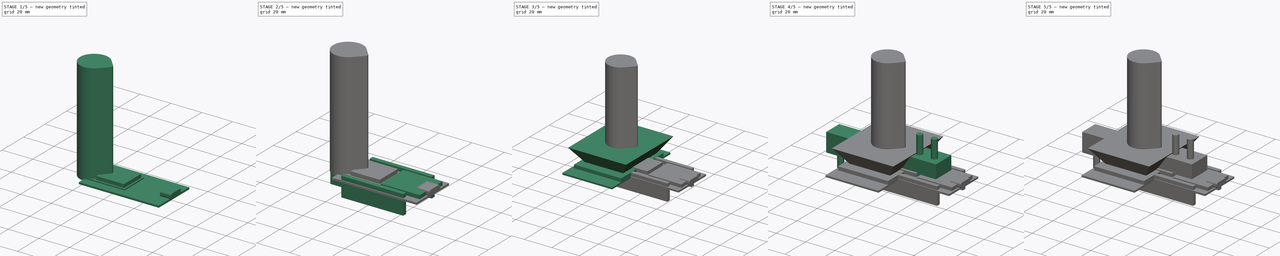
[diagram: build sequence overview — one tinted view per stage of 5, left to right]
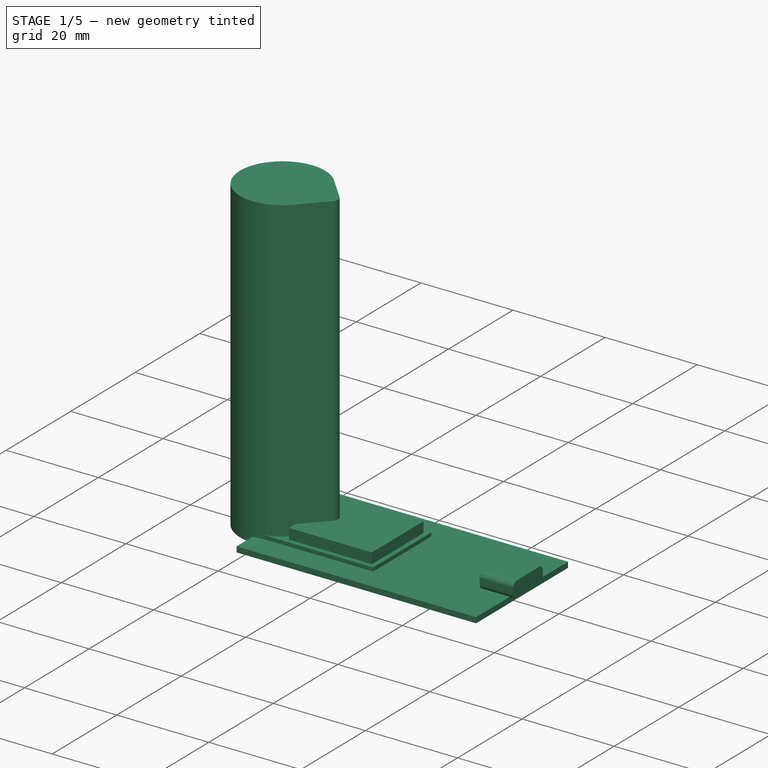
[diagram: stage 1 of 5 — iso view after this stage's code; geometry added in this stage tinted green]
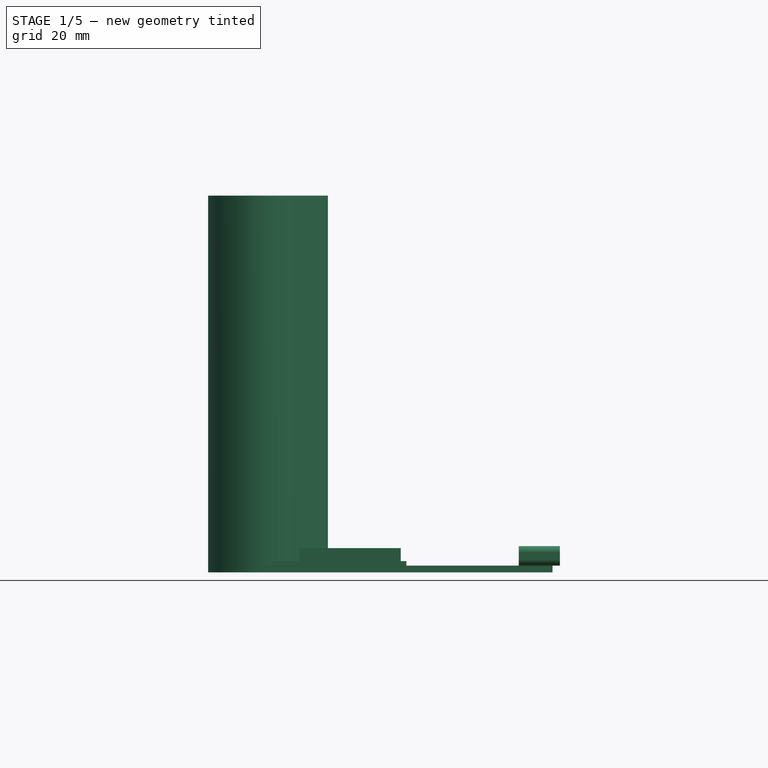
[diagram: stage 1 of 5 — front view after this stage's code; geometry added in this stage tinted green]
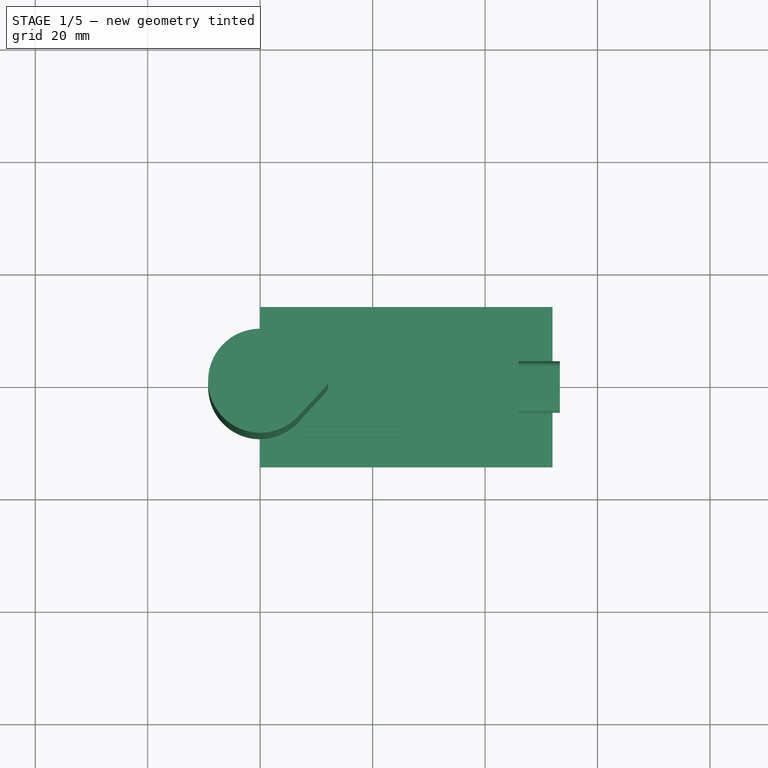
[diagram: stage 1 of 5 — top view after this stage's code; geometry added in this stage tinted green]
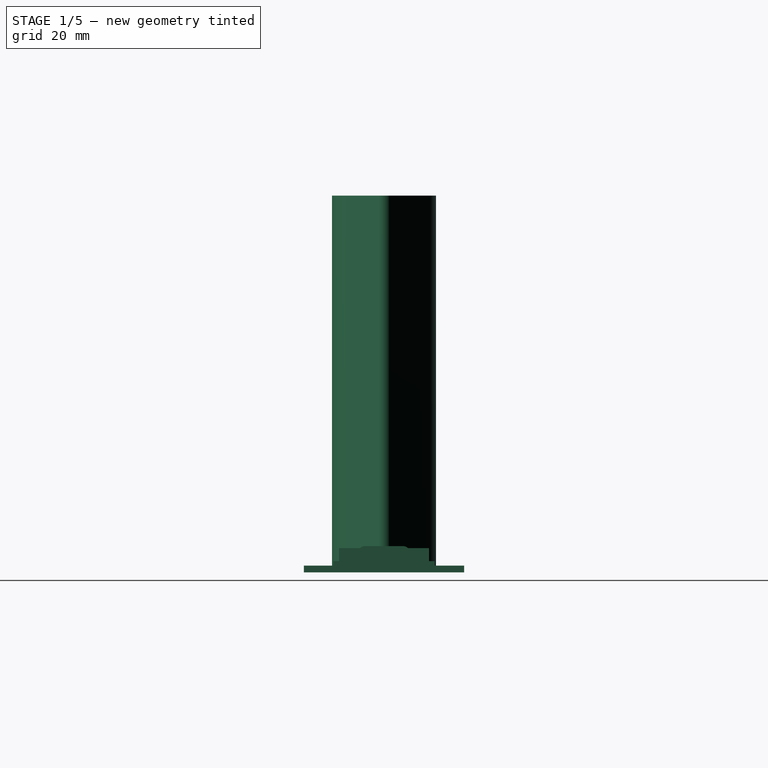
[diagram: stage 1 of 5 — right view after this stage's code; geometry added in this stage tinted green]
FCSTD DOCUMENT  (FreeCAD 0.22R38340 (Git))
Label: parts_v3
License: All rights reserved
LicenseURL: https://en.wikipedia.org/wiki/All_rights_reserved
objects: PartDesign::Pad×24, Sketcher::SketchObject×20, Image::ImagePlane×7, PartDesign::Body×7, PartDesign::SubShapeBinder×2, PartDesign::Pocket×1
note: 124 computed .brp shape members not serialized (recipe doc carries the construction recipe); baked Part::Feature solids carry a one-line shape summary decoded from their .brp

FEATURE [PartDesign::Body] Body007  label="Encoder"
  AllowCompound = false
  Group = -> [Sketch012,Pad009,Sketch013,Pad010,Sketch014,Pad011,Sketch015,Pad012]
  Origin = -> Origin007
  Tip = -> Pad012
FEATURE [Sketcher::SketchObject] Sketch016
  ArcFitTolerance = 1e-06
  AttachmentSupport = -> [XY_Plane008]
  FullyConstrained = false
  MakeInternals = false
  MapMode = 5
  sketch-geometry (5):
    g0: LineSegment StartX=0 StartY=14.25 StartZ=0 EndX=0 EndY=-14.25 EndZ=0
    g1: LineSegment StartX=0 StartY=-14.25 StartZ=0 EndX=52 EndY=-14.25 EndZ=0
    g2: LineSegment StartX=52 StartY=-14.25 StartZ=0 EndX=52 EndY=14.25 EndZ=0
    g3: LineSegment StartX=52 StartY=14.25 StartZ=0 EndX=0 EndY=14.25 EndZ=0
    g4: GeomPoint X=49.5 Y=0 Z=0
  constraints (12):
    c: Coincident(g0,g1)
    c: Coincident(g1,g2)
    c: Coincident(g2,g3)
    c: Coincident(g3,g0)
    c: Vertical(g2)
    c: Horizontal(g1)
    c: Horizontal(g3)
    c: DistanceX(g1,g1) = 52
    c: DistanceY(g2,g2) = 28.5
    c: PointOnObject(g4,g-1)
    c: PointOnObject(g0,g-2)
    c: Symmetric(g0,g0,g-1)
FEATURE [PartDesign::Pad] Pad001
  Direction = (0,0,1)
  Length = 1.2
  Length2 = 10
  Profile = -> Sketch016 [Edge4,Edge1,Edge2,Edge3]
  ReferenceAxis = -> Sketch016 [N_Axis]
  Refine = true
  Suppressed = false
  Type = 0
FEATURE [Sketcher::SketchObject] Sketch017
  ArcFitTolerance = 1e-06
  AttachmentSupport = -> [XY_Plane008]
  FullyConstrained = true
  MakeInternals = false
  MapMode = 5
  sketch-geometry (4):
    g0: LineSegment StartX=0 StartY=9 StartZ=0 EndX=0 EndY=-9 EndZ=0
    g1: LineSegment StartX=0 StartY=-9 StartZ=0 EndX=26 EndY=-9 EndZ=0
    g2: LineSegment StartX=26 StartY=-9 StartZ=0 EndX=26 EndY=9 EndZ=0
    g3: LineSegment StartX=26 StartY=9 StartZ=0 EndX=0 EndY=9 EndZ=0
  constraints (11):
    c: Coincident(g0,g1)
    c: Coincident(g1,g2)
    c: Coincident(g2,g3)
    c: Coincident(g3,g0)
    c: Parallel(g0,g2)
    c: Parallel(g1,g3)
    c: Perpendicular(g0,g1)
    c: PointOnObject(g0,g-2)
    c: DistanceX(g1,g1) = 26
    c: DistanceY(g2,g2) = 18
    c: Symmetric(g0,g0,g-1)
FEATURE [PartDesign::Pad] Pad003
  BaseFeature = -> Pad001
  Direction = (0,0,1)
  Length = 2
  Length2 = 10
  Profile = -> Sketch017
  ReferenceAxis = -> Sketch017 [N_Axis]
  Refine = true
  Suppressed = false
  Type = 0
FEATURE [Sketcher::SketchObject] Sketch018
  ArcFitTolerance = 1e-06
  AttachmentSupport = -> [XY_Plane008]
  FullyConstrained = true
  MakeInternals = false
  MapMode = 5
  sketch-geometry (5):
    g0: LineSegment StartX=7 StartY=-8 StartZ=0 EndX=25 EndY=-8 EndZ=0
    g1: LineSegment StartX=25 StartY=-8 StartZ=0 EndX=25 EndY=8 EndZ=0
    g2: LineSegment StartX=25 StartY=8 StartZ=0 EndX=7 EndY=8 EndZ=0
    g3: LineSegment StartX=7 StartY=8 StartZ=0 EndX=7 EndY=-8 EndZ=0
    g4: GeomPoint X=16 Y=3e-16 Z=0
  constraints (12):
    c: Coincident(g0,g1)
    c: Coincident(g1,g2)
    c: Coincident(g2,g3)
    c: Coincident(g3,g0)
    c: Horizontal(g0)
    c: Horizontal(g2)
    c: Vertical(g1)
    c: Symmetric(g2,g0,g4)
    c: Distance(g1,g3) = 18
    c: Distance(g0,g2) = 16
    c: Symmetric(g0,g2,g-1)
    c: DistanceX(g0) = 7
FEATURE [PartDesign::Pad] Pad029
  BaseFeature = -> Pad003
  Direction = (0,0,1)
  Length = 4.3
  Length2 = 10
  Profile = -> Sketch018
  ReferenceAxis = -> Sketch018 [N_Axis]
  Refine = true
  Suppressed = false
  Type = 0
FEATURE [Sketcher::SketchObject] Sketch004
  ArcFitTolerance = 1e-06
  AttachmentOffset = pos=(0,0,46) rot=(0,0,1;0rad)
  AttachmentSupport = -> [YZ_Plane008]
  FullyConstrained = true
  MakeInternals = false
  MapMode = 5
  Placement = pos=(46,0,0) rot=(0.57735,0.57735,0.57735;2.0944rad)
  sketch-geometry (9):
    g0: LineSegment StartX=-3.445 StartY=1.2 StartZ=0 EndX=3.445 EndY=1.2 EndZ=0
    g1: LineSegment StartX=4.57 StartY=2.325 StartZ=0 EndX=4.57 EndY=3.535 EndZ=0
    g2: LineSegment StartX=3.445 StartY=4.66 StartZ=0 EndX=-3.445 EndY=4.66 EndZ=0
    g3: LineSegment StartX=-4.57 StartY=3.535 StartZ=0 EndX=-4.57 EndY=2.325 EndZ=0
    g4: GeomPoint X=0 Y=2.93 Z=0
    g5: ArcOfCircle CenterX=3.445 CenterY=3.535 CenterZ=0 NormalX=0 NormalY=0 NormalZ=1 AngleXU=0 Radius=1.125 StartAngle=0 EndAngle=1.5708
    g6: ArcOfCircle CenterX=3.445 CenterY=2.325 CenterZ=0 NormalX=0 NormalY=0 NormalZ=1 AngleXU=0 Radius=1.125 StartAngle=4.71239 EndAngle=6.28319
    g7: ArcOfCircle CenterX=-3.445 CenterY=2.325 CenterZ=0 NormalX=0 NormalY=0 NormalZ=1 AngleXU=0 Radius=1.125 StartAngle=3.14159 EndAngle=4.71239
    g8: ArcOfCircle CenterX=-3.445 CenterY=3.535 CenterZ=0 NormalX=0 NormalY=0 NormalZ=1 AngleXU=0 Radius=1.125 StartAngle=1.5708 EndAngle=3.14159
  constraints (21):
    c: Horizontal(g0)
    c: Horizontal(g2)
    c: Vertical(g1)
    c: Vertical(g3)
    c: Symmetric(g2,g0,g4)
    c: Distance(g1,g3) = 9.14
    c: Distance(g0,g2) = 3.46
    c: PointOnObject(g4,g-2)
    c: Equal(g3,g1)
    c: Equal(g0,g2)
    c: Vertical(g0,g2)
    c: DistanceY(g1,g1) = 1.21
    c: Tangent(g5,g2) = -1.5708
    c: Tangent(g5,g1) = -1.5708
    c: Tangent(g6,g1) = -1.5708
    c: Tangent(g6,g0) = -1.5708
    c: Tangent(g7,g0) = -1.5708
    c: Tangent(g7,g3) = -1.5708
    c: Tangent(g8,g3) = -1.5708
    c: Tangent(g8,g2) = -1.5708
    c: DistanceY(g0) = 1.2
FEATURE [PartDesign::Pad] Pad030
  BaseFeature = -> Pad029
  Direction = (1,0,0)
  Length = 7.3
  Length2 = 10
  Profile = -> Sketch004
  ReferenceAxis = -> Sketch004 [N_Axis]
  Refine = true
  Suppressed = false
  Type = 0
FEATURE [PartDesign::Body] Body008  label="esp_new_mdl"
  AllowCompound = false
  Group = -> [Sketch016,Pad001,Sketch017,Pad003,Sketch018,Pad029,Sketch004,Pad030,Sketch019,Pad006,Sketch020,Pad031,Sketch021,Pad032]
  Origin = -> Origin008
  Placement = pos=(-1.28e-14,0,0) rot=(-0.57735,-0.57735,0.57735;0rad)
  Tip = -> Pad032
FEATURE [Image::ImagePlane] esp_new
  Placement = pos=(-0.5,2.5,0) rot=(0,0,1;1.5708rad)
  XSize = 91.3875
  YSize = 91.3875
FEATURE [Image::ImagePlane] encoder
  Placement = pos=(-7,-2,0) rot=(0,0,1;0rad)
  XSize = 84.6872
  YSize = 50.0838
FEATURE [PartDesign::Pad] Pad
  Direction = (0,0,1)
  Length = 67
  Length2 = 10
  Profile = -> Sketch005
  ReferenceAxis = -> Sketch005 [N_Axis]
  Refine = true
  Suppressed = false
  Type = 0
FEATURE [PartDesign::Body] Body004  label="akku"
  AllowCompound = false
  Group = -> [Sketch005,Pad]
  Origin = -> Origin004
  Tip = -> Pad
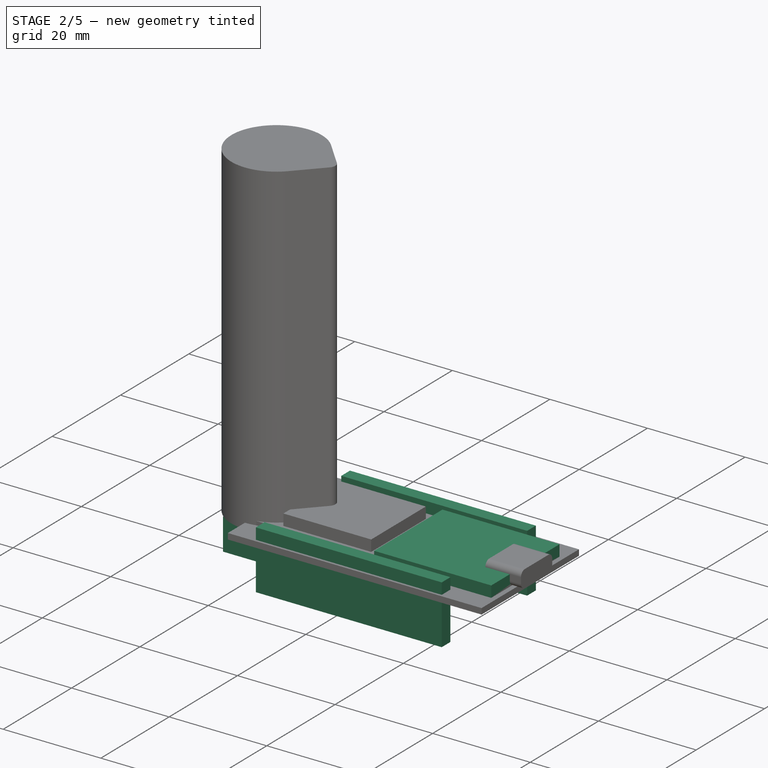
[diagram: stage 2 of 5 — iso view after this stage's code; geometry added in this stage tinted green]
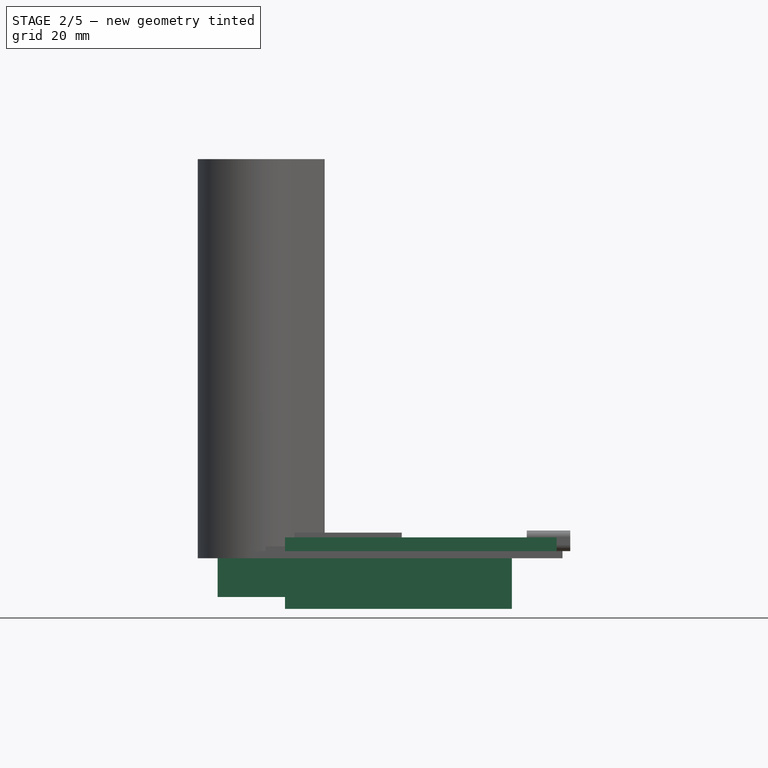
[diagram: stage 2 of 5 — front view after this stage's code; geometry added in this stage tinted green]
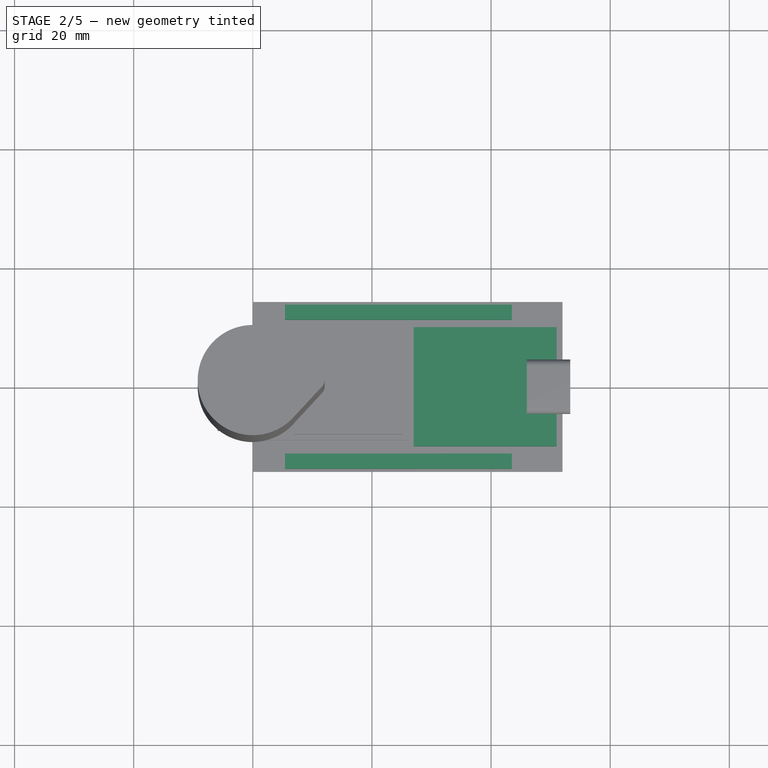
[diagram: stage 2 of 5 — top view after this stage's code; geometry added in this stage tinted green]
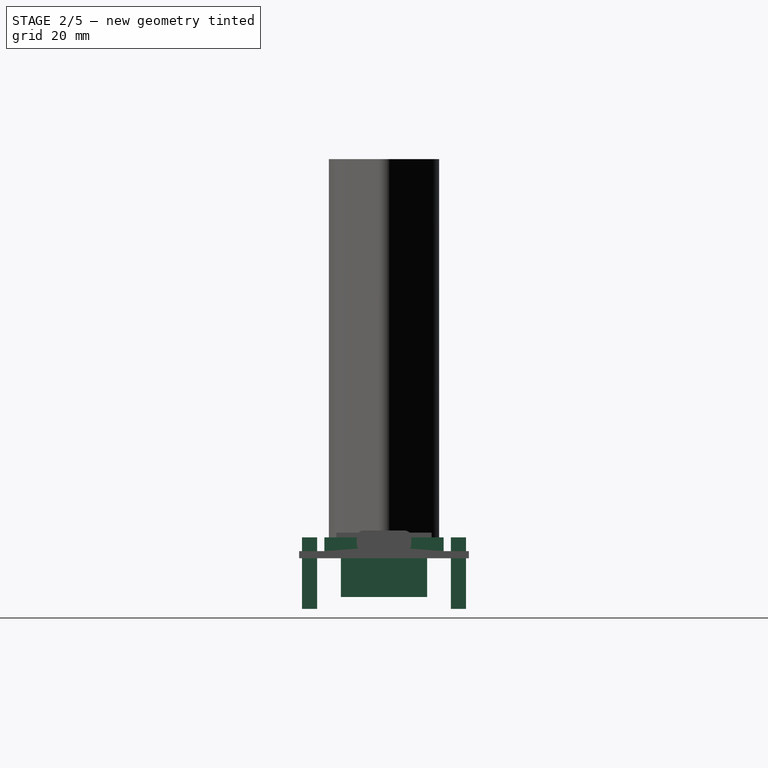
[diagram: stage 2 of 5 — right view after this stage's code; geometry added in this stage tinted green]
FEATURE [PartDesign::Body] Body001  label="display"
  AllowCompound = false
  Group = -> [Sketch001,Sketch011,Pad027,Pad004,Binder,Pad005,Pad028]
  Origin = -> Origin001
  Tip = -> Pad028
FEATURE [Sketcher::SketchObject] Sketch012
  ArcFitTolerance = 1e-06
  AttachmentSupport = -> [XY_Plane007]
  FullyConstrained = true
  MakeInternals = false
  MapMode = 5
  sketch-geometry (4):
    g0: LineSegment StartX=-5.9 StartY=7.25 StartZ=0 EndX=-5.9 EndY=-7.25 EndZ=0
    g1: LineSegment StartX=-5.9 StartY=-7.25 StartZ=0 EndX=5.9 EndY=-7.25 EndZ=0
    g2: LineSegment StartX=5.9 StartY=-7.25 StartZ=0 EndX=5.9 EndY=7.25 EndZ=0
    g3: LineSegment StartX=5.9 StartY=7.25 StartZ=0 EndX=-5.9 EndY=7.25 EndZ=0
  constraints (11):
    c: Coincident(g0,g1)
    c: Coincident(g1,g2)
    c: Coincident(g2,g3)
    c: Coincident(g3,g0)
    c: Vertical(g0)
    c: Vertical(g2)
    c: Horizontal(g1)
    c: Horizontal(g3)
    c: DistanceX(g3,g3) = 11.8
    c: Symmetric(g0,g2,g-1)
    c: DistanceY(g2,g2) = 14.5
FEATURE [PartDesign::Pad] Pad009
  Direction = (0,0,1)
  Length = 6.5
  Length2 = 10
  Profile = -> Sketch012
  ReferenceAxis = -> Sketch012 [N_Axis]
  Refine = true
  Reversed = true
  Suppressed = false
  Type = 0
FEATURE [Sketcher::SketchObject] Sketch013
  ArcFitTolerance = 1e-06
  AttachmentSupport = -> [XY_Plane007]
  FullyConstrained = true
  MakeInternals = false
  MapMode = 5
  sketch-geometry (1):
    g0: Circle CenterX=0 CenterY=0 CenterZ=0 NormalX=0 NormalY=0 NormalZ=1 AngleXU=0 Radius=3.5
  constraints (2):
    c: Diameter(g0) = 7
    c: Coincident(g0,g-1)
FEATURE [PartDesign::Pad] Pad010
  BaseFeature = -> Pad009
  Direction = (0,0,1)
  Length = 5
  Length2 = 10
  Profile = -> Sketch013
  ReferenceAxis = -> Sketch013 [N_Axis]
  Refine = true
  Suppressed = false
  Type = 0
FEATURE [Sketcher::SketchObject] Sketch019
  ArcFitTolerance = 1e-06
  AttachmentSupport = -> [XY_Plane008]
  FullyConstrained = true
  MakeInternals = false
  MapMode = 5
  sketch-geometry (5):
    g0: LineSegment StartX=27 StartY=-10 StartZ=0 EndX=51 EndY=-10 EndZ=0
    g1: LineSegment StartX=51 StartY=-10 StartZ=0 EndX=51 EndY=10 EndZ=0
    g2: LineSegment StartX=51 StartY=10 StartZ=0 EndX=27 EndY=10 EndZ=0
    g3: LineSegment StartX=27 StartY=10 StartZ=0 EndX=27 EndY=-10 EndZ=0
    g4: GeomPoint X=39 Y=-2e-16 Z=0
  constraints (13):
    c: Coincident(g0,g1)
    c: Coincident(g1,g2)
    c: Coincident(g2,g3)
    c: Coincident(g3,g0)
    c: Horizontal(g0)
    c: Horizontal(g2)
    c: Vertical(g1)
    c: Vertical(g3)
    c: Symmetric(g2,g0,g4)
    c: PointOnObject(g4,g-1)
    c: DistanceX(g0) = 27
    c: DistanceX(g0,g0) = 24
    c: DistanceY(g1,g1) = 20
FEATURE [PartDesign::Pad] Pad006
  BaseFeature = -> Pad030
  Direction = (0,0,1)
  Length = 3.5
  Length2 = 10
  Profile = -> Sketch019
  ReferenceAxis = -> Sketch019 [N_Axis]
  Refine = true
  Suppressed = false
  Type = 0
FEATURE [Sketcher::SketchObject] Sketch020
  ArcFitTolerance = 1e-06
  AttachmentSupport = -> [XY_Plane008]
  FullyConstrained = true
  MakeInternals = false
  MapMode = 5
  sketch-geometry (10):
    g0: LineSegment StartX=5.4 StartY=13.77 StartZ=0 EndX=5.4 EndY=11.23 EndZ=0
    g1: LineSegment StartX=5.4 StartY=11.23 StartZ=0 EndX=43.5 EndY=11.23 EndZ=0
    g2: LineSegment StartX=43.5 StartY=11.23 StartZ=0 EndX=43.5 EndY=13.77 EndZ=0
    g3: LineSegment StartX=43.5 StartY=13.77 StartZ=0 EndX=5.4 EndY=13.77 EndZ=0
    g4: GeomPoint X=24.45 Y=12.5 Z=0
    g5: LineSegment StartX=5.4 StartY=-13.77 StartZ=0 EndX=5.4 EndY=-11.23 EndZ=0
    g6: LineSegment StartX=5.4 StartY=-11.23 StartZ=0 EndX=43.5 EndY=-11.23 EndZ=0
    g7: LineSegment StartX=43.5 StartY=-11.23 StartZ=0 EndX=43.5 EndY=-13.77 EndZ=0
    g8: LineSegment StartX=43.5 StartY=-13.77 StartZ=0 EndX=5.4 EndY=-13.77 EndZ=0
    g9: GeomPoint X=24.45 Y=-12.5 Z=0
  constraints (25):
    c: Coincident(g0,g1)
    c: Coincident(g1,g2)
    c: Coincident(g2,g3)
    c: Coincident(g3,g0)
    c: Vertical(g0)
    c: Vertical(g2)
    c: Horizontal(g1)
    c: Horizontal(g3)
    c: Symmetric(g2,g0,g4)
    c: DistanceX(g1,g1) = 38.1
    c: DistanceX(g0) = 5.4
    c: DistanceY(g2,g2) = 2.54
    c: Coincident(g5,g6)
    c: Coincident(g6,g7)
    c: Coincident(g7,g8)
    c: Coincident(g8,g5)
    c: Vertical(g5)
    c: Vertical(g7)
    c: Horizontal(g6)
    c: Horizontal(g8)
    c: Symmetric(g7,g5,g9)
    c: DistanceY(g5,g0) = 25
    c: Equal(g5,g0)
    c: Equal(g6,g1)
    c: Symmetric(g5,g0,g-1)
FEATURE [PartDesign::Pad] Pad031
  BaseFeature = -> Pad006
  Direction = (0,0,1)
  Length = 8.5
  Length2 = 3.5
  Profile = -> Sketch020
  ReferenceAxis = -> Sketch020 [N_Axis]
  Refine = true
  Reversed = true
  Suppressed = false
  Type = 4
FEATURE [Sketcher::SketchObject] Sketch021
  ArcFitTolerance = 1e-06
  AttachmentSupport = -> [XY_Plane008]
  FullyConstrained = false
  MakeInternals = false
  MapMode = 5
  sketch-geometry (120):
    g0: LineSegment StartX=6.5 StartY=12.82 StartZ=0 EndX=6.5 EndY=12.18 EndZ=0
    g1: LineSegment StartX=6.5 StartY=12.18 StartZ=0 EndX=7.14 EndY=12.18 EndZ=0
    g2: LineSegment StartX=7.14 StartY=12.18 StartZ=0 EndX=7.14 EndY=12.82 EndZ=0
    g3: LineSegment StartX=7.14 StartY=12.82 StartZ=0 EndX=6.5 EndY=12.82 EndZ=0
    g4: LineSegment StartX=6.5 StartY=-12.18 StartZ=0 EndX=6.5 EndY=-12.82 EndZ=0
    g5: LineSegment StartX=6.5 StartY=-12.82 StartZ=0 EndX=7.14 EndY=-12.82 EndZ=0
    g6: LineSegment StartX=7.14 StartY=-12.82 StartZ=0 EndX=7.14 EndY=-12.18 EndZ=0
    g7: LineSegment StartX=7.14 StartY=-12.18 StartZ=0 EndX=6.5 EndY=-12.18 EndZ=0
    g8: LineSegment StartX=9.04 StartY=12.82 StartZ=0 EndX=9.04 EndY=12.18 EndZ=0
    g9: LineSegment StartX=9.04 StartY=12.18 StartZ=0 EndX=9.68 EndY=12.18 EndZ=0
    g10: LineSegment StartX=9.68 StartY=12.18 StartZ=0 EndX=9.68 EndY=12.82 EndZ=0
    g11: LineSegment StartX=9.68 StartY=12.82 StartZ=0 EndX=9.04 EndY=12.82 EndZ=0
    g12: LineSegment StartX=9.04 StartY=-12.18 StartZ=0 EndX=9.04 EndY=-12.82 EndZ=0
    g13: LineSegment StartX=9.04 StartY=-12.82 StartZ=0 EndX=9.68 EndY=-12.82 EndZ=0
    g14: LineSegment StartX=9.68 StartY=-12.82 StartZ=0 EndX=9.68 EndY=-12.18 EndZ=0
    g15: LineSegment StartX=9.68 StartY=-12.18 StartZ=0 EndX=9.04 EndY=-12.18 EndZ=0
    g16: LineSegment StartX=11.58 StartY=12.82 StartZ=0 EndX=11.58 EndY=12.18 EndZ=0
    g17: LineSegment StartX=11.58 StartY=12.18 StartZ=0 EndX=12.22 EndY=12.18 EndZ=0
    g18: LineSegment StartX=12.22 StartY=12.18 StartZ=0 EndX=12.22 EndY=12.82 EndZ=0
    g19: LineSegment StartX=12.22 StartY=12.82 StartZ=0 EndX=11.58 EndY=12.82 EndZ=0
    g20: LineSegment StartX=11.58 StartY=-12.18 StartZ=0 EndX=11.58 EndY=-12.82 EndZ=0
    g21: LineSegment StartX=11.58 StartY=-12.82 StartZ=0 EndX=12.22 EndY=-12.82 EndZ=0
    g22: LineSegment StartX=12.22 StartY=-12.82 StartZ=0 EndX=12.22 EndY=-12.18 EndZ=0
    g23: LineSegment StartX=12.22 StartY=-12.18 StartZ=0 EndX=11.58 EndY=-12.18 EndZ=0
    g24: LineSegment StartX=14.12 StartY=12.82 StartZ=0 EndX=14.12 EndY=12.18 EndZ=0
    g25: LineSegment StartX=14.12 StartY=12.18 StartZ=0 EndX=14.76 EndY=12.18 EndZ=0
    g26: LineSegment StartX=14.76 StartY=12.18 StartZ=0 EndX=14.76 EndY=12.82 EndZ=0
    g27: LineSegment StartX=14.76 StartY=12.82 StartZ=0 EndX=14.12 EndY=12.82 EndZ=0
    g28: LineSegment StartX=14.12 StartY=-12.18 StartZ=0 EndX=14.12 EndY=-12.82 EndZ=0
    g29: LineSegment StartX=14.12 StartY=-12.82 StartZ=0 EndX=14.76 EndY=-12.82 EndZ=0
    g30: LineSegment StartX=14.76 StartY=-12.82 StartZ=0 EndX=14.76 EndY=-12.18 EndZ=0
    g31: LineSegment StartX=14.76 StartY=-12.18 StartZ=0 EndX=14.12 EndY=-12.18 EndZ=0
    g32: LineSegment StartX=16.66 StartY=12.82 StartZ=0 EndX=16.66 EndY=12.18 EndZ=0
    g33: LineSegment StartX=16.66 StartY=12.18 StartZ=0 EndX=17.3 EndY=12.18 EndZ=0
    g34: LineSegment StartX=17.3 StartY=12.18 StartZ=0 EndX=17.3 EndY=12.82 EndZ=0
    g35: LineSegment StartX=17.3 StartY=12.82 StartZ=0 EndX=16.66 EndY=12.82 EndZ=0
    g36: LineSegment StartX=16.66 StartY=-12.18 StartZ=0 EndX=16.66 EndY=-12.82 EndZ=0
    g37: LineSegment StartX=16.66 StartY=-12.82 StartZ=0 EndX=17.3 EndY=-12.82 EndZ=0
    g38: LineSegment StartX=17.3 StartY=-12.82 StartZ=0 EndX=17.3 EndY=-12.18 EndZ=0
    g39: LineSegment StartX=17.3 StartY=-12.18 StartZ=0 EndX=16.66 EndY=-12.18 EndZ=0
    g40: LineSegment StartX=19.2 StartY=12.82 StartZ=0 EndX=19.2 EndY=12.18 EndZ=0
    g41: LineSegment StartX=19.2 StartY=12.18 StartZ=0 EndX=19.84 EndY=12.18 EndZ=0
    g42: LineSegment StartX=19.84 StartY=12.18 StartZ=0 EndX=19.84 EndY=12.82 EndZ=0
    g43: LineSegment StartX=19.84 StartY=12.82 StartZ=0 EndX=19.2 EndY=12.82 EndZ=0
    g44: LineSegment StartX=19.2 StartY=-12.18 StartZ=0 EndX=19.2 EndY=-12.82 EndZ=0
    g45: LineSegment StartX=19.2 StartY=-12.82 StartZ=0 EndX=19.84 EndY=-12.82 EndZ=0
    g46: LineSegment StartX=19.84 StartY=-12.82 StartZ=0 EndX=19.84 EndY=-12.18 EndZ=0
    g47: LineSegment StartX=19.84 StartY=-12.18 StartZ=0 EndX=19.2 EndY=-12.18 EndZ=0
    g48: LineSegment StartX=21.74 StartY=12.82 StartZ=0 EndX=21.74 EndY=12.18 EndZ=0
    g49: LineSegment StartX=21.74 StartY=12.18 StartZ=0 EndX=22.38 EndY=12.18 EndZ=0
    g50: LineSegment StartX=22.38 StartY=12.18 StartZ=0 EndX=22.38 EndY=12.82 EndZ=0
    g51: LineSegment StartX=22.38 StartY=12.82 StartZ=0 EndX=21.74 EndY=12.82 EndZ=0
    g52: LineSegment StartX=21.74 StartY=-12.18 StartZ=0 EndX=21.74 EndY=-12.82 EndZ=0
    g53: LineSegment StartX=21.74 StartY=-12.82 StartZ=0 EndX=22.38 EndY=-12.82 EndZ=0
    g54: LineSegment StartX=22.38 StartY=-12.82 StartZ=0 EndX=22.38 EndY=-12.18 EndZ=0
    g55: LineSegment StartX=22.38 StartY=-12.18 StartZ=0 EndX=21.74 EndY=-12.18 EndZ=0
    g56: LineSegment StartX=24.28 StartY=12.82 StartZ=0 EndX=24.28 EndY=12.18 EndZ=0
    g57: LineSegment StartX=24.28 StartY=12.18 StartZ=0 EndX=24.92 EndY=12.18 EndZ=0
    g58: LineSegment StartX=24.92 StartY=12.18 StartZ=0 EndX=24.92 EndY=12.82 EndZ=0
    g59: LineSegment StartX=24.92 StartY=12.82 StartZ=0 EndX=24.28 EndY=12.82 EndZ=0
    g60: LineSegment StartX=24.28 StartY=-12.18 StartZ=0 EndX=24.28 EndY=-12.82 EndZ=0
    g61: LineSegment StartX=24.28 StartY=-12.82 StartZ=0 EndX=24.92 EndY=-12.82 EndZ=0
    g62: LineSegment StartX=24.92 StartY=-12.82 StartZ=0 EndX=24.92 EndY=-12.18 EndZ=0
    g63: LineSegment StartX=24.92 StartY=-12.18 StartZ=0 EndX=24.28 EndY=-12.18 EndZ=0
    g64: LineSegment StartX=26.82 StartY=12.82 StartZ=0 EndX=26.82 EndY=12.18 EndZ=0
    g65: LineSegment StartX=26.82 StartY=12.18 StartZ=0 EndX=27.46 EndY=12.18 EndZ=0
    g66: LineSegment StartX=27.46 StartY=12.18 StartZ=0 EndX=27.46 EndY=12.82 EndZ=0
    g67: LineSegment StartX=27.46 StartY=12.82 StartZ=0 EndX=26.82 EndY=12.82 EndZ=0
    g68: LineSegment StartX=26.82 StartY=-12.18 StartZ=0 EndX=26.82 EndY=-12.82 EndZ=0
    g69: LineSegment StartX=26.82 StartY=-12.82 StartZ=0 EndX=27.46 EndY=-12.82 EndZ=0
    g70: LineSegment StartX=27.46 StartY=-12.82 StartZ=0 EndX=27.46 EndY=-12.18 EndZ=0
    g71: LineSegment StartX=27.46 StartY=-12.18 StartZ=0 EndX=26.82 EndY=-12.18 EndZ=0
    g72: LineSegment StartX=29.36 StartY=12.82 StartZ=0 EndX=29.36 EndY=12.18 EndZ=0
    g73: LineSegment StartX=29.36 StartY=12.18 StartZ=0 EndX=30 EndY=12.18 EndZ=0
    g74: LineSegment StartX=30 StartY=12.18 StartZ=0 EndX=30 EndY=12.82 EndZ=0
    g75: LineSegment StartX=30 StartY=12.82 StartZ=0 EndX=29.36 EndY=12.82 EndZ=0
    g76: LineSegment StartX=29.36 StartY=-12.18 StartZ=0 EndX=29.36 EndY=-12.82 EndZ=0
    g77: LineSegment StartX=29.36 StartY=-12.82 StartZ=0 EndX=30 EndY=-12.82 EndZ=0
    g78: LineSegment StartX=30 StartY=-12.82 StartZ=0 EndX=30 EndY=-12.18 EndZ=0
    g79: LineSegment StartX=30 StartY=-12.18 StartZ=0 EndX=29.36 EndY=-12.18 EndZ=0
    g80: LineSegment StartX=31.9 StartY=12.82 StartZ=0 EndX=31.9 EndY=12.18 EndZ=0
    g81: LineSegment StartX=31.9 StartY=12.18 StartZ=0 EndX=32.54 EndY=12.18 EndZ=0
    g82: LineSegment StartX=32.54 StartY=12.18 StartZ=0 EndX=32.54 EndY=12.82 EndZ=0
    g83: LineSegment StartX=32.54 StartY=12.82 StartZ=0 EndX=31.9 EndY=12.82 EndZ=0
    g84: LineSegment StartX=31.9 StartY=-12.18 StartZ=0 EndX=31.9 EndY=-12.82 EndZ=0
    g85: LineSegment StartX=31.9 StartY=-12.82 StartZ=0 EndX=32.54 EndY=-12.82 EndZ=0
    g86: LineSegment StartX=32.54 StartY=-12.82 StartZ=0 EndX=32.54 EndY=-12.18 EndZ=0
    g87: LineSegment StartX=32.54 StartY=-12.18 StartZ=0 EndX=31.9 EndY=-12.18 EndZ=0
    g88: LineSegment StartX=34.44 StartY=12.82 StartZ=0 EndX=34.44 EndY=12.18 EndZ=0
    g89: LineSegment StartX=34.44 StartY=12.18 StartZ=0 EndX=35.08 EndY=12.18 EndZ=0
    g90: LineSegment StartX=35.08 StartY=12.18 StartZ=0 EndX=35.08 EndY=12.82 EndZ=0
    g91: LineSegment StartX=35.08 StartY=12.82 StartZ=0 EndX=34.44 EndY=12.82 EndZ=0
    g92: LineSegment StartX=34.44 StartY=-12.18 StartZ=0 EndX=34.44 EndY=-12.82 EndZ=0
    g93: LineSegment StartX=34.44 StartY=-12.82 StartZ=0 EndX=35.08 EndY=-12.82 EndZ=0
    g94: LineSegment StartX=35.08 StartY=-12.82 StartZ=0 EndX=35.08 EndY=-12.18 EndZ=0
    g95: LineSegment StartX=35.08 StartY=-12.18 StartZ=0 EndX=34.44 EndY=-12.18 EndZ=0
    g96: LineSegment StartX=36.98 StartY=12.82 StartZ=0 EndX=36.98 EndY=12.18 EndZ=0
    g97: LineSegment StartX=36.98 StartY=12.18 StartZ=0 EndX=37.62 EndY=12.18 EndZ=0
    g98: LineSegment StartX=37.62 StartY=12.18 StartZ=0 EndX=37.62 EndY=12.82 EndZ=0
    g99: LineSegment StartX=37.62 StartY=12.82 StartZ=0 EndX=36.98 EndY=12.82 EndZ=0
    g100: LineSegment StartX=36.98 StartY=-12.18 StartZ=0 EndX=36.98 EndY=-12.82 EndZ=0
    g101: LineSegment StartX=36.98 StartY=-12.82 StartZ=0 EndX=37.62 EndY=-12.82 EndZ=0
    g102: LineSegment StartX=37.62 StartY=-12.82 StartZ=0 EndX=37.62 EndY=-12.18 EndZ=0
    g103: LineSegment StartX=37.62 StartY=-12.18 StartZ=0 EndX=36.98 EndY=-12.18 EndZ=0
    g104: LineSegment StartX=39.52 StartY=12.82 StartZ=0 EndX=39.52 EndY=12.18 EndZ=0
    g105: LineSegment StartX=39.52 StartY=12.18 StartZ=0 EndX=40.16 EndY=12.18 EndZ=0
    g106: LineSegment StartX=40.16 StartY=12.18 StartZ=0 EndX=40.16 EndY=12.82 EndZ=0
    g107: LineSegment StartX=40.16 StartY=12.82 StartZ=0 EndX=39.52 EndY=12.82 EndZ=0
    g108: LineSegment StartX=39.52 StartY=-12.18 StartZ=0 EndX=39.52 EndY=-12.82 EndZ=0
    g109: LineSegment StartX=39.52 StartY=-12.82 StartZ=0 EndX=40.16 EndY=-12.82 EndZ=0
    g110: LineSegment StartX=40.16 StartY=-12.82 StartZ=0 EndX=40.16 EndY=-12.18 EndZ=0
    g111: LineSegment StartX=40.16 StartY=-12.18 StartZ=0 EndX=39.52 EndY=-12.18 EndZ=0
    g112: LineSegment StartX=42.06 StartY=12.82 StartZ=0 EndX=42.06 EndY=12.18 EndZ=0
    g113: LineSegment StartX=42.06 StartY=12.18 StartZ=0 EndX=42.7 EndY=12.18 EndZ=0
    g114: LineSegment StartX=42.7 StartY=12.18 StartZ=0 EndX=42.7 EndY=12.82 EndZ=0
    g115: LineSegment StartX=42.7 StartY=12.82 StartZ=0 EndX=42.06 EndY=12.82 EndZ=0
    g116: LineSegment StartX=42.06 StartY=-12.18 StartZ=0 EndX=42.06 EndY=-12.82 EndZ=0
    g117: LineSegment StartX=42.06 StartY=-12.82 StartZ=0 EndX=42.7 EndY=-12.82 EndZ=0
    g118: LineSegment StartX=42.7 StartY=-12.82 StartZ=0 EndX=42.7 EndY=-12.18 EndZ=0
    g119: LineSegment StartX=42.7 StartY=-12.18 StartZ=0 EndX=42.06 EndY=-12.18 EndZ=0
  constraints (317):
    c: Coincident(g0,g1)
    c: Coincident(g1,g2)
    c: Coincident(g2,g3)
    c: Coincident(g3,g0)
    c: Vertical(g0)
    c: Vertical(g2)
    c: Horizontal(g1)
    c: Horizontal(g3)
    c: Coincident(g4,g5)
    c: Coincident(g5,g6)
    c: Coincident(g6,g7)
    c: Coincident(g7,g4)
    c: Vertical(g4)
    c: Vertical(g6)
    c: Horizontal(g5)
    c: Horizontal(g7)
    c: Equal(g1,g2)
    c: Equal(g1,g7)
    c: Equal(g6,g7)
    c: DistanceY(g6,g6) = 0.64
    c: DistanceX(g-1,g4) = 6.5
    c: DistanceY(g4,g0) = 25
    c: Symmetric(g4,g0,g-1)
    c: Coincident(g8,g9)
    c: Coincident(g16,g17)
    c: Coincident(g24,g25)
    c: Coincident(g32,g33)
    c: Coincident(g40,g41)
    c: Coincident(g48,g49)
    c: Coincident(g56,g57)
    c: Coincident(g64,g65)
    c: Coincident(g72,g73)
    c: Coincident(g80,g81)
    c: Coincident(g88,g89)
    c: Coincident(g96,g97)
    c: Coincident(g104,g105)
    c: Coincident(g112,g113)
    c: Coincident(g9,g10)
    c: Coincident(g17,g18)
    c: Coincident(g25,g26)
    c: Coincident(g33,g34)
    c: Coincident(g41,g42)
    c: Coincident(g49,g50)
    c: Coincident(g57,g58)
    c: Coincident(g65,g66)
    c: Coincident(g73,g74)
    c: Coincident(g81,g82)
    c: Coincident(g89,g90)
    c: Coincident(g97,g98)
    c: Coincident(g105,g106)
    c: Coincident(g113,g114)
    c: Coincident(g10,g11)
    c: Coincident(g18,g19)
    c: Coincident(g26,g27)
    c: Coincident(g34,g35)
    c: Coincident(g42,g43)
    c: Coincident(g50,g51)
    c: Coincident(g58,g59)
    c: Coincident(g66,g67)
    c: Coincident(g74,g75)
    c: Coincident(g82,g83)
    c: Coincident(g90,g91)
    c: Coincident(g98,g99)
    c: Coincident(g106,g107)
    c: Coincident(g114,g115)
    c: Coincident(g11,g8)
    c: Coincident(g19,g16)
    c: Coincident(g27,g24)
    c: Coincident(g35,g32)
    c: Coincident(g43,g40)
    c: Coincident(g51,g48)
    c: Coincident(g59,g56)
    c: Coincident(g67,g64)
    c: Coincident(g75,g72)
    c: Coincident(g83,g80)
    c: Coincident(g91,g88)
    c: Coincident(g99,g96)
    c: Coincident(g107,g104)
    c: Coincident(g115,g112)
    c: Vertical(g8)
    c: Vertical(g16)
    c: Vertical(g24)
    c: Vertical(g32)
    c: Vertical(g40)
    c: Vertical(g48)
    c: Vertical(g56)
    c: Vertical(g64)
    c: Vertical(g72)
    c: Vertical(g80)
    c: Vertical(g88)
    c: Vertical(g96)
    c: Vertical(g104)
    c: Vertical(g112)
    c: Vertical(g10)
    c: Vertical(g18)
    c: Vertical(g26)
    c: Vertical(g34)
    c: Vertical(g42)
    c: Vertical(g50)
    c: Vertical(g58)
    c: Vertical(g66)
    c: Vertical(g74)
    c: Vertical(g82)
    c: Vertical(g90)
    c: Vertical(g98)
    c: Vertical(g106)
    c: Vertical(g114)
    c: Horizontal(g9)
    c: Horizontal(g17)
    c: Horizontal(g25)
    c: Horizontal(g33)
    c: Horizontal(g41)
    c: Horizontal(g49)
    c: Horizontal(g57)
    c: Horizontal(g65)
    c: Horizontal(g73)
    c: Horizontal(g81)
    c: Horizontal(g89)
    c: Horizontal(g97)
    c: Horizontal(g105)
    c: Horizontal(g113)
    c: Horizontal(g11)
    c: Horizontal(g19)
    c: Horizontal(g27)
    c: Horizontal(g35)
    c: Horizontal(g43)
    c: Horizontal(g51)
    c: Horizontal(g59)
    c: Horizontal(g67)
    c: Horizontal(g75)
    c: Horizontal(g83)
    c: Horizontal(g91)
    c: Horizontal(g99)
    c: Horizontal(g107)
    c: Horizontal(g115)
    c: Coincident(g12,g13)
    c: Coincident(g20,g21)
    c: Coincident(g28,g29)
    c: Coincident(g36,g37)
    c: Coincident(g44,g45)
    c: Coincident(g52,g53)
    c: Coincident(g60,g61)
    c: Coincident(g68,g69)
    c: Coincident(g76,g77)
    c: Coincident(g84,g85)
    c: Coincident(g92,g93)
    c: Coincident(g100,g101)
    c: Coincident(g108,g109)
    c: Coincident(g116,g117)
    c: Coincident(g13,g14)
    c: Coincident(g21,g22)
    c: Coincident(g29,g30)
    c: Coincident(g37,g38)
    c: Coincident(g45,g46)
    c: Coincident(g53,g54)
    c: Coincident(g61,g62)
    c: Coincident(g69,g70)
    c: Coincident(g77,g78)
    c: Coincident(g85,g86)
    c: Coincident(g93,g94)
    c: Coincident(g101,g102)
    c: Coincident(g109,g110)
    c: Coincident(g117,g118)
    c: Coincident(g14,g15)
    c: Coincident(g22,g23)
    c: Coincident(g30,g31)
    c: Coincident(g38,g39)
    c: Coincident(g46,g47)
    c: Coincident(g54,g55)
    c: Coincident(g62,g63)
    c: Coincident(g70,g71)
    c: Coincident(g78,g79)
    c: Coincident(g86,g87)
    c: Coincident(g94,g95)
    c: Coincident(g102,g103)
    c: Coincident(g110,g111)
    c: Coincident(g118,g119)
    c: Coincident(g15,g12)
    c: Coincident(g23,g20)
    c: Coincident(g31,g28)
    c: Coincident(g39,g36)
    c: Coincident(g47,g44)
    c: Coincident(g55,g52)
    c: Coincident(g63,g60)
    c: Coincident(g71,g68)
    c: Coincident(g79,g76)
    c: Coincident(g87,g84)
    c: Coincident(g95,g92)
    c: Coincident(g103,g100)
    c: Coincident(g111,g108)
    c: Coincident(g119,g116)
    c: Vertical(g12)
    c: Vertical(g20)
    c: Vertical(g28)
    c: Vertical(g36)
    c: Vertical(g44)
    c: Vertical(g52)
    c: Vertical(g60)
    c: Vertical(g68)
    c: Vertical(g76)
    c: Vertical(g84)
    c: Vertical(g92)
    c: Vertical(g100)
    c: Vertical(g108)
    c: Vertical(g116)
    c: Vertical(g14)
    c: Vertical(g22)
    c: Vertical(g30)
    c: Vertical(g38)
    c: Vertical(g46)
    c: Vertical(g54)
    c: Vertical(g62)
    c: Vertical(g70)
    c: Vertical(g78)
    c: Vertical(g86)
    c: Vertical(g94)
    c: Vertical(g102)
    c: Vertical(g110)
    c: Vertical(g118)
    c: Horizontal(g13)
    c: Horizontal(g21)
    c: Horizontal(g29)
    c: Horizontal(g37)
    c: Horizontal(g45)
    c: Horizontal(g53)
    c: Horizontal(g61)
    c: Horizontal(g69)
    c: Horizontal(g77)
    c: Horizontal(g85)
    c: Horizontal(g93)
    c: Horizontal(g101)
    c: Horizontal(g109)
    c: Horizontal(g117)
    c: Horizontal(g15)
    c: Horizontal(g23)
    c: Horizontal(g31)
    c: Horizontal(g39)
    c: Horizontal(g47)
    c: Horizontal(g55)
    c: Horizontal(g63)
    c: Horizontal(g71)
    c: Horizontal(g79)
    c: Horizontal(g87)
    c: Horizontal(g95)
    c: Horizontal(g103)
    c: Horizontal(g111)
    c: Horizontal(g119)
    c: Equal(g9,g10)
    c: Equal(g17,g18)
    c: Equal(g25,g26)
    c: Equal(g33,g34)
    c: Equal(g41,g42)
    c: Equal(g49,g50)
    c: Equal(g57,g58)
    c: Equal(g65,g66)
    c: Equal(g73,g74)
    c: Equal(g81,g82)
    c: Equal(g89,g90)
    c: Equal(g97,g98)
    c: Equal(g105,g106)
    c: Equal(g113,g114)
    c: Equal(g9,g15)
    c: Equal(g17,g23)
    c: Equal(g25,g31)
    c: Equal(g33,g39)
    c: Equal(g41,g47)
    c: Equal(g49,g55)
    c: Equal(g57,g63)
    c: Equal(g65,g71)
    c: Equal(g73,g79)
    c: Equal(g81,g87)
    c: Equal(g89,g95)
    c: Equal(g97,g103)
    c: Equal(g105,g111)
    c: Equal(g113,g119)
    c: Equal(g14,g15)
    c: Equal(g22,g23)
    c: Equal(g30,g31)
    c: Equal(g38,g39)
    c: Equal(g46,g47)
    c: Equal(g54,g55)
    c: Equal(g62,g63)
    c: Equal(g70,g71)
    c: Equal(g78,g79)
    c: Equal(g86,g87)
    c: Equal(g94,g95)
    c: Equal(g102,g103)
    c: Equal(g110,g111)
    c: Equal(g118,g119)
    c: DistanceY(g14,g14) = 0.64
    c: DistanceY(g22,g22) = 0.64
    c: DistanceY(g30,g30) = 0.64
    c: DistanceY(g38,g38) = 0.64
    c: DistanceY(g46,g46) = 0.64
    c: DistanceY(g54,g54) = 0.64
    c: DistanceY(g62,g62) = 0.64
    c: DistanceY(g70,g70) = 0.64
    c: DistanceY(g78,g78) = 0.64
    c: DistanceY(g86,g86) = 0.64
    c: DistanceY(g94,g94) = 0.64
    c: DistanceY(g102,g102) = 0.64
    c: DistanceY(g110,g110) = 0.64
    c: DistanceY(g118,g118) = 0.64
    c: DistanceY(g12,g8) = 25
    c: DistanceY(g20,g16) = 25
    c: DistanceY(g28,g24) = 25
    c: DistanceY(g36,g32) = 25
    c: DistanceY(g44,g40) = 25
    c: DistanceY(g52,g48) = 25
    c: DistanceY(g60,g56) = 25
    c: DistanceY(g68,g64) = 25
    c: DistanceY(g76,g72) = 25
    c: DistanceY(g84,g80) = 25
    c: DistanceY(g92,g88) = 25
    c: DistanceY(g100,g96) = 25
    c: DistanceY(g108,g104) = 25
    c: DistanceY(g116,g112) = 25
FEATURE [PartDesign::Pad] Pad032
  BaseFeature = -> Pad031
  Direction = (0,0,1)
  Length = 8.5
  Length2 = 10
  Profile = -> Sketch021
  ReferenceAxis = -> Sketch021 [N_Axis]
  Refine = true
  Reversed = true
  Suppressed = false
  Type = 0
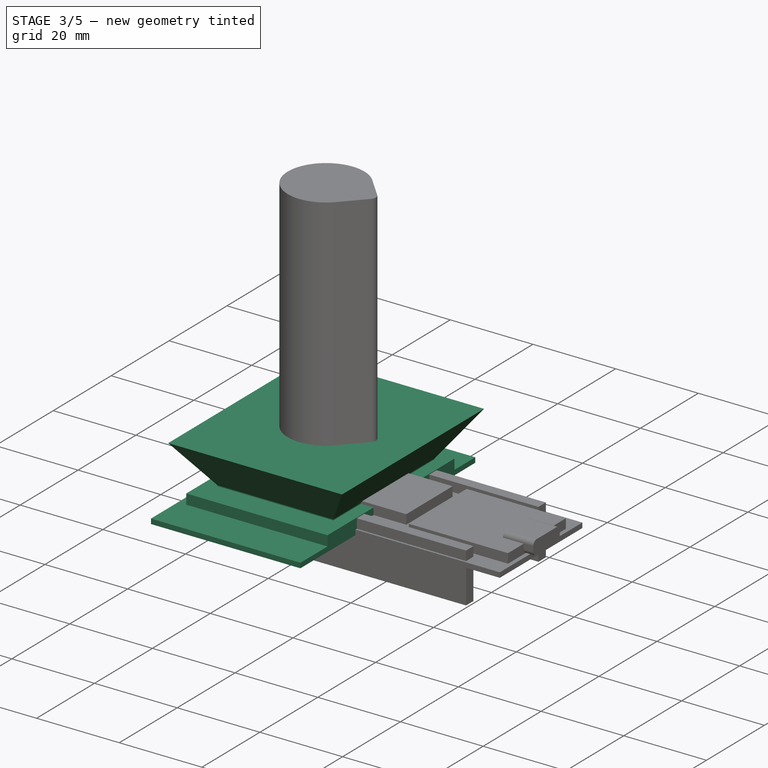
[diagram: stage 3 of 5 — iso view after this stage's code; geometry added in this stage tinted green]
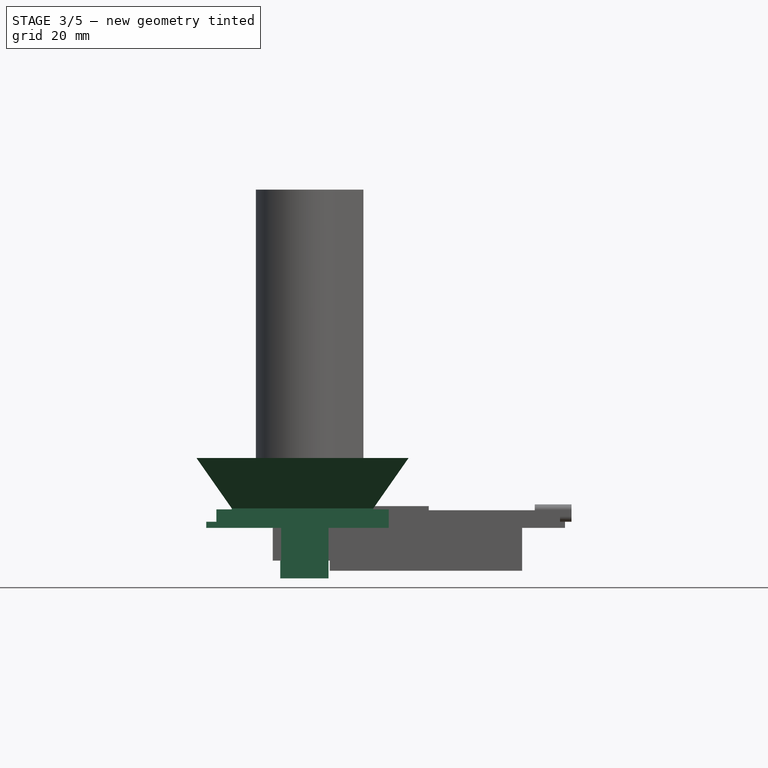
[diagram: stage 3 of 5 — front view after this stage's code; geometry added in this stage tinted green]
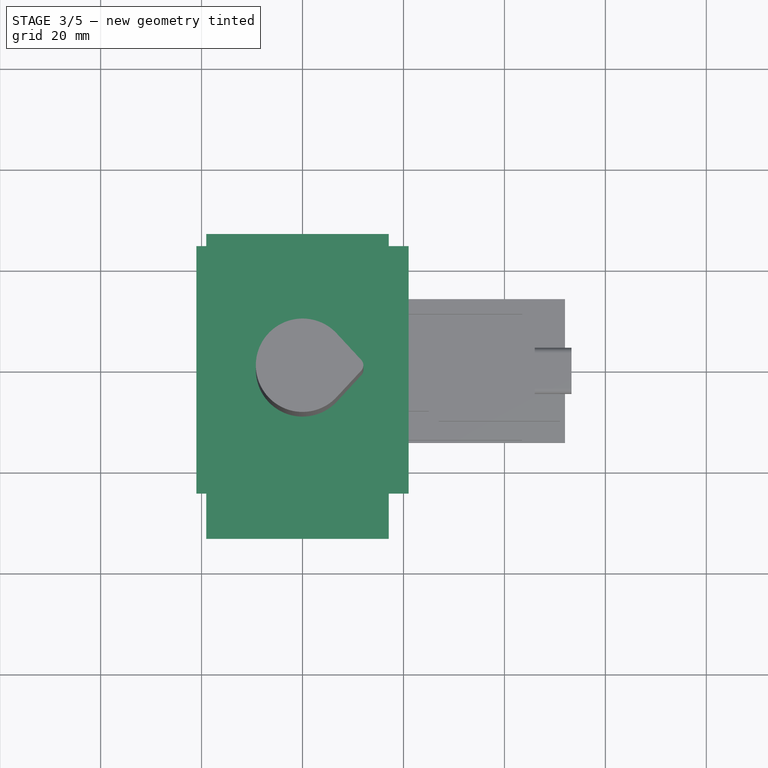
[diagram: stage 3 of 5 — top view after this stage's code; geometry added in this stage tinted green]
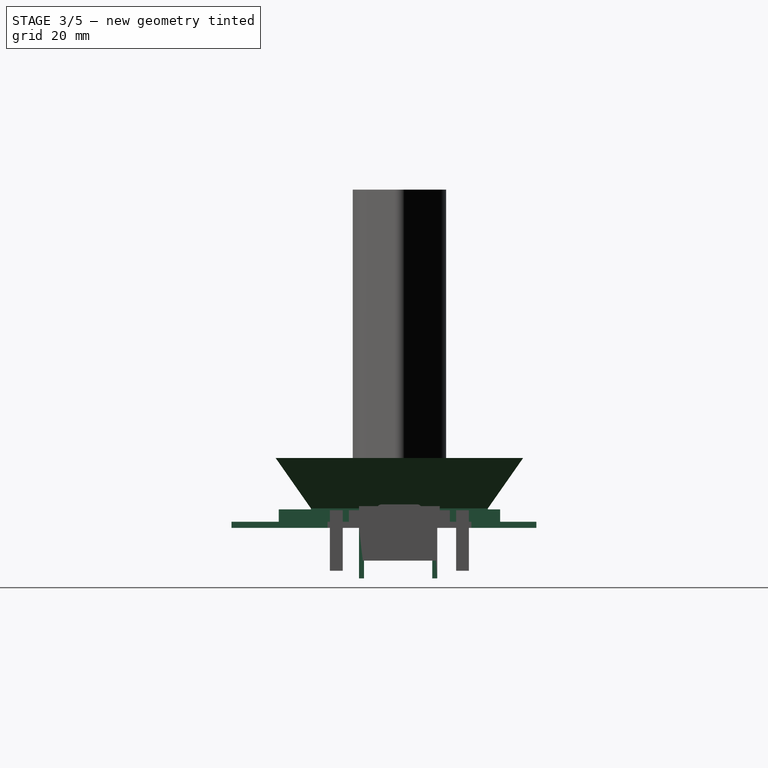
[diagram: stage 3 of 5 — right view after this stage's code; geometry added in this stage tinted green]
FEATURE [PartDesign::Body] Body006  label="loadcell_mit_silikon"
  AllowCompound = false
  Group = -> [Sketch010,Pad024,Pad025,Pad026]
  Origin = -> Origin006
  Tip = -> Pad026
FEATURE [Sketcher::SketchObject] Sketch011
  ArcFitTolerance = 1e-06
  AttachmentSupport = -> [XY_Plane001]
  FullyConstrained = false
  MakeInternals = false
  MapMode = 5
  sketch-geometry (4):
    g0: LineSegment StartX=-19.075 StartY=27.15 StartZ=0 EndX=-19.075 EndY=-33.25 EndZ=0
    g1: LineSegment StartX=-19.075 StartY=-33.25 StartZ=0 EndX=17.075 EndY=-33.25 EndZ=0
    g2: LineSegment StartX=17.075 StartY=-33.25 StartZ=0 EndX=17.075 EndY=27.15 EndZ=0
    g3: LineSegment StartX=17.075 StartY=27.15 StartZ=0 EndX=-19.075 EndY=27.15 EndZ=0
  constraints (8):
    c: Coincident(g0,g1)
    c: Coincident(g1,g2)
    c: Coincident(g2,g3)
    c: Coincident(g3,g0)
    c: Vertical(g0)
    c: Vertical(g2)
    c: Horizontal(g1)
    c: Horizontal(g3)
FEATURE [PartDesign::Pad] Pad027
  Direction = (0,0,1)
  Length = 1.2
  Length2 = 10
  Profile = -> Sketch011
  ReferenceAxis = -> Sketch011 [N_Axis]
  Refine = true
  Suppressed = false
  Type = 0
FEATURE [PartDesign::Pad] Pad004
  BaseFeature = -> Pad027
  Direction = (0,0,1)
  Length = 3.65
  Length2 = 10
  Profile = -> Sketch001 [Edge21,Edge20,Edge19,Edge22]
  ReferenceAxis = -> Sketch001 [N_Axis]
  Refine = true
  Suppressed = false
  Type = 0
FEATURE [PartDesign::Pad] Pad005
  BaseFeature = -> Pad004
  Direction = (0,0,1)
  Length = 10
  Length2 = 1
  Profile = -> Binder
  Refine = true
  Suppressed = false
  TaperAngle = 35
  Type = 4
FEATURE [Sketcher::SketchObject] Sketch014
  ArcFitTolerance = 1e-06
  AttachmentSupport = -> [XY_Plane007]
  FullyConstrained = true
  MakeInternals = false
  MapMode = 5
  sketch-geometry (1):
    g0: Circle CenterX=0 CenterY=0 CenterZ=0 NormalX=0 NormalY=0 NormalZ=1 AngleXU=0 Radius=3
  constraints (2):
    c: Diameter(g0) = 6
    c: Coincident(g0,g-1)
FEATURE [PartDesign::Pad] Pad011
  BaseFeature = -> Pad010
  Direction = (0,0,1)
  Length = 15
  Length2 = 10
  Profile = -> Sketch014
  ReferenceAxis = -> Sketch014 [N_Axis]
  Refine = true
  Suppressed = false
  Type = 0
FEATURE [Sketcher::SketchObject] Sketch015
  ArcFitTolerance = 1e-06
  AttachmentSupport = -> [XY_Plane007]
  FullyConstrained = false
  MakeInternals = false
  MapMode = 5
  sketch-geometry (8):
    g0: LineSegment StartX=-4.4052 StartY=7.5 StartZ=0 EndX=-4.4052 EndY=6.5 EndZ=0
    g1: LineSegment StartX=-4.4052 StartY=6.5 StartZ=0 EndX=4.47502 EndY=6.5 EndZ=0
    g2: LineSegment StartX=4.47502 StartY=6.5 StartZ=0 EndX=4.47502 EndY=7.5 EndZ=0
    g3: LineSegment StartX=4.47502 StartY=7.5 StartZ=0 EndX=-4.4052 EndY=7.5 EndZ=0
    g4: LineSegment StartX=-4.24166 StartY=-7 StartZ=0 EndX=-4.24166 EndY=-8 EndZ=0
    g5: LineSegment StartX=-4.24166 StartY=-8 StartZ=0 EndX=5.13629 EndY=-8 EndZ=0
    g6: LineSegment StartX=5.13629 StartY=-8 StartZ=0 EndX=5.13629 EndY=-7 EndZ=0
    g7: LineSegment StartX=5.13629 StartY=-7 StartZ=0 EndX=-4.24166 EndY=-7 EndZ=0
  constraints (20):
    c: Coincident(g0,g1)
    c: Coincident(g1,g2)
    c: Coincident(g2,g3)
    c: Coincident(g3,g0)
    c: Vertical(g0)
    c: Vertical(g2)
    c: Horizontal(g1)
    c: Horizontal(g3)
    c: Coincident(g4,g5)
    c: Coincident(g5,g6)
    c: Coincident(g6,g7)
    c: Coincident(g7,g4)
    c: Vertical(g4)
    c: Vertical(g6)
    c: Horizontal(g5)
    c: Horizontal(g7)
    c: DistanceY(g4) = -7
    c: DistanceY(g4,g4) = 1
    c: DistanceY(g0) = 6.5
    c: DistanceY(g0,g0) = 1
FEATURE [PartDesign::Pad] Pad012
  BaseFeature = -> Pad011
  Direction = (0,0,1)
  Length = 10
  Length2 = 10
  Profile = -> Sketch015
  ReferenceAxis = -> Sketch015 [N_Axis]
  Refine = true
  Reversed = true
  Suppressed = false
  Type = 0
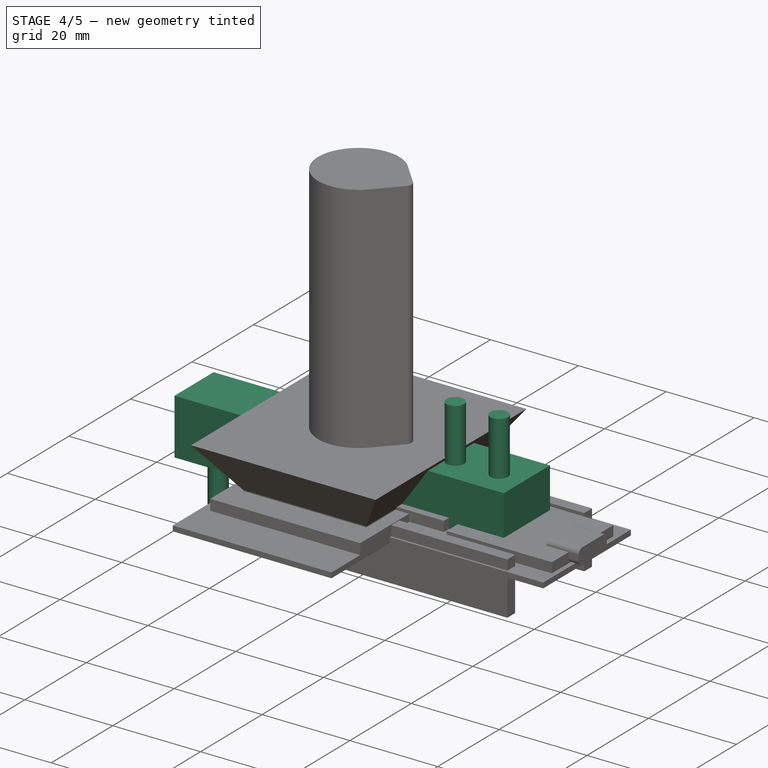
[diagram: stage 4 of 5 — iso view after this stage's code; geometry added in this stage tinted green]
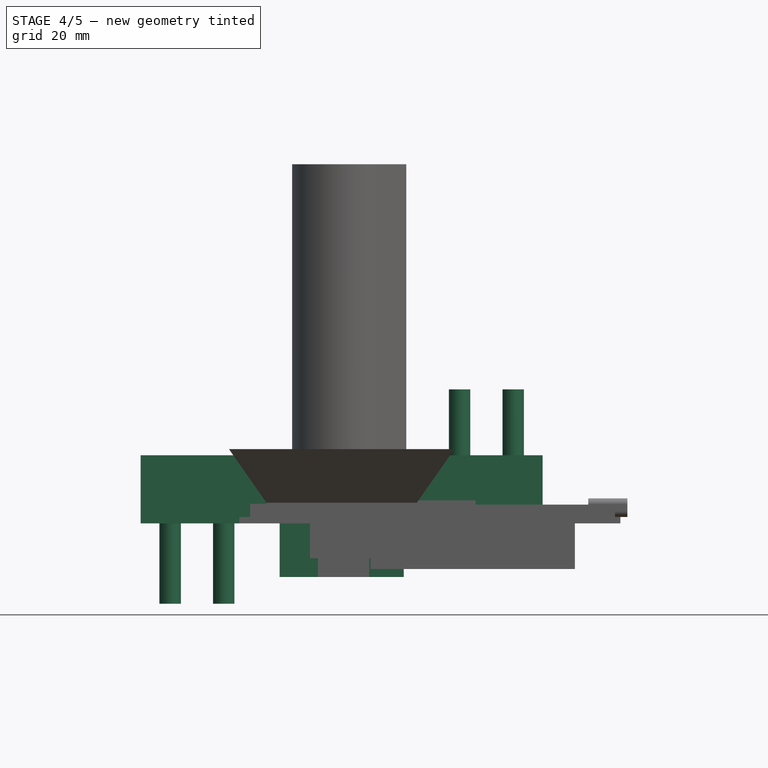
[diagram: stage 4 of 5 — front view after this stage's code; geometry added in this stage tinted green]
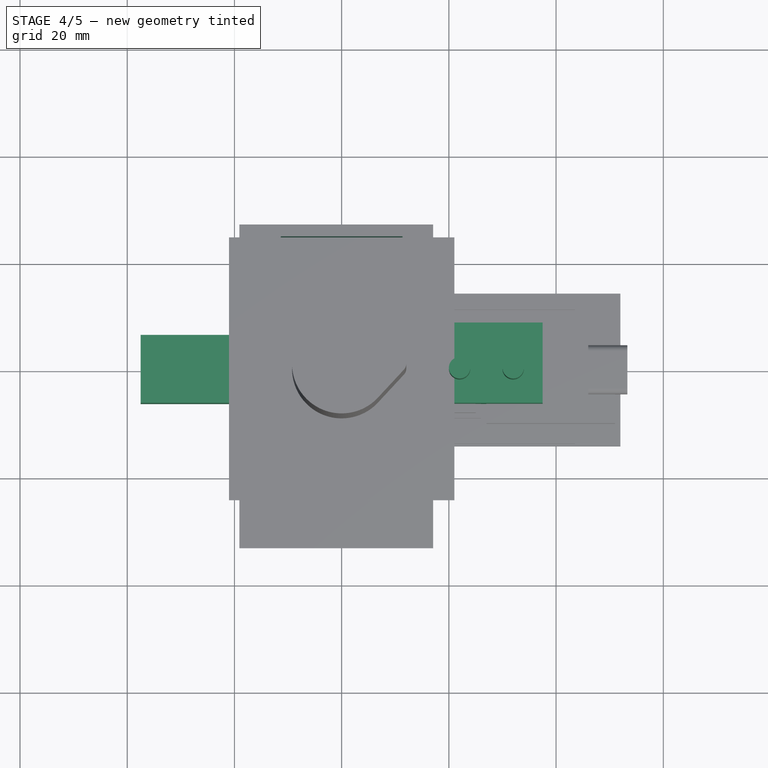
[diagram: stage 4 of 5 — top view after this stage's code; geometry added in this stage tinted green]
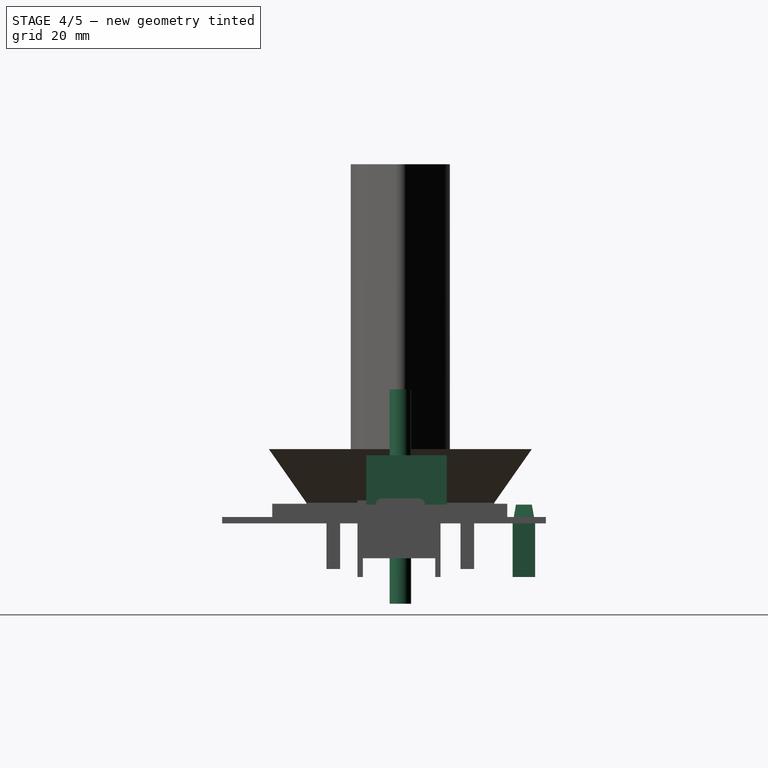
[diagram: stage 4 of 5 — right view after this stage's code; geometry added in this stage tinted green]
FEATURE [Sketcher::SketchObject] Sketch001
  ArcFitTolerance = 1e-06
  AttachmentSupport = -> [XY_Plane001]
  FullyConstrained = false
  MakeInternals = false
  MapMode = 5
  sketch-geometry (26):
    g0: LineSegment StartX=-17.075 StartY=25.15 StartZ=0 EndX=-17.075 EndY=-31.25 EndZ=0
    g1: LineSegment StartX=-17.075 StartY=-31.25 StartZ=0 EndX=17.075 EndY=-31.25 EndZ=0
    g2: LineSegment StartX=17.075 StartY=-31.25 StartZ=0 EndX=17.075 EndY=25.149 EndZ=0
    g3: GeomPoint X=0 Y=0 Z=0
    g4: Circle CenterX=-15.125 CenterY=22.95 CenterZ=0 NormalX=0 NormalY=0 NormalZ=1 AngleXU=0 Radius=1
    g5: Circle CenterX=14.875 CenterY=22.95 CenterZ=0 NormalX=0 NormalY=0 NormalZ=1 AngleXU=0 Radius=1
    g6: Circle CenterX=14.875 CenterY=-29.05 CenterZ=0 NormalX=0 NormalY=0 NormalZ=1 AngleXU=0 Radius=1
    g7: Circle CenterX=-15.125 CenterY=-29.05 CenterZ=0 NormalX=0 NormalY=0 NormalZ=1 AngleXU=0 Radius=1
    g8: LineSegment StartX=-14.015 StartY=17.52 StartZ=0 EndX=-14.015 EndY=-17.52 EndZ=0
    g9: LineSegment StartX=-14.015 StartY=-17.52 StartZ=0 EndX=14.015 EndY=-17.52 EndZ=0
    g10: LineSegment StartX=14.015 StartY=-17.52 StartZ=0 EndX=14.015 EndY=17.52 EndZ=0
    g11: LineSegment StartX=14.015 StartY=17.52 StartZ=0 EndX=-14.015 EndY=17.52 EndZ=0
    g12: GeomPoint X=0 Y=0 Z=0
    g13: LineSegment StartX=-17.075 StartY=19.95 StartZ=0 EndX=-17.075 EndY=-23.9 EndZ=0
    g14: LineSegment StartX=-17.075 StartY=-23.9 StartZ=0 EndX=17.075 EndY=-23.9 EndZ=0
    g15: LineSegment StartX=17.075 StartY=-23.9 StartZ=0 EndX=17.075 EndY=19.95 EndZ=0
    g16: LineSegment StartX=17.075 StartY=19.95 StartZ=0 EndX=-17.075 EndY=19.95 EndZ=0
    g17: GeomPoint X=0 Y=-1.975 Z=0
    g18: LineSegment StartX=-11.575 StartY=25.149 StartZ=0 EndX=-11.575 EndY=20.95 EndZ=0
    g19: LineSegment StartX=-11.575 StartY=20.95 StartZ=0 EndX=11.575 EndY=20.95 EndZ=0
    g20: LineSegment StartX=11.575 StartY=20.95 StartZ=0 EndX=11.575 EndY=25.149 EndZ=0
    g21: LineSegment StartX=11.575 StartY=25.149 StartZ=0 EndX=-11.575 EndY=25.149 EndZ=0
    g22: LineSegment StartX=14.875 StartY=-29.05 StartZ=0 EndX=17.075 EndY=-29.05 EndZ=0
    g23: LineSegment StartX=-11.575 StartY=25.149 StartZ=0 EndX=11.575 EndY=25.149 EndZ=0
    g24: LineSegment StartX=-17.075 StartY=25.15 StartZ=0 EndX=-11.575 EndY=25.149 EndZ=0
    g25: LineSegment StartX=11.575 StartY=25.149 StartZ=0 EndX=17.075 EndY=25.149 EndZ=0
  constraints (67):
    c: Coincident(g0,g1)
    c: Coincident(g1,g2)
    c: Vertical(g0)
    c: Vertical(g2)
    c: Coincident(g3,g-1)
    c: DistanceY(g0,g0) = 56.4
    c: Equal(g5,g4)
    c: Equal(g4,g6)
    c: Equal(g6,g7)
    c: Diameter(g5) = 2
    c: Horizontal(g4,g5)
    c: Vertical(g5,g6)
    c: Vertical(g7,g4)
    c: DistanceX(g7,g6) = 30
    c: Coincident(g8,g9)
    c: Coincident(g9,g10)
    c: Coincident(g10,g11)
    c: Coincident(g11,g8)
    c: Vertical(g8)
    c: Vertical(g10)
    c: Horizontal(g9)
    c: Horizontal(g11)
    c: Symmetric(g10,g8,g12)
    c: Coincident(g12,g3)
    c: DistanceY(g8,g8) = 35.04
    c: DistanceX(g9,g9) = 28.03
    c: Coincident(g13,g14)
    c: Coincident(g14,g15)
    c: Coincident(g15,g16)
    c: Coincident(g16,g13)
    c: Vertical(g13)
    c: Vertical(g15)
    c: Horizontal(g14)
    c: Horizontal(g16)
    c: Symmetric(g15,g13,g17)
    c: PointOnObject(g17,g-2)
    c: DistanceY(g13,g13) = 43.85
    c: DistanceY(g7,g4) = 52
    c: DistanceY(g4,g0) = 2.2
    c: DistanceY(g13,g0) = 5.2
    c: Coincident(g18,g19)
    c: Coincident(g19,g20)
    c: Coincident(g20,g21)
    c: Coincident(g21,g18)
    c: Vertical(g18)
    c: Vertical(g20)
    c: Horizontal(g19)
    c: Symmetric(g20,g18,g-2)
    c: DistanceX(g20,g2) = 5.5
    c: DistanceY(g18,g0) = 0.001
    c: DistanceY(g19,g15) = -1
    c: DistanceY(g8,g13) = 2.43
    c: DistanceX(g16,g16) = 34.15
    c: DistanceX(g0,g2) = 34.15
    c: DistanceY(g1,g14) = 7.35
    c: Horizontal(g1)
    c: Coincident(g22,g6)
    c: PointOnObject(g22,g2)
    c: Horizontal(g22)
    c: DistanceX(g22,g22) = 2.2
    c: PointOnObject(g14,g2)
    c: Horizontal(g6,g7)
    c: Coincident(g23,g18)
    c: Coincident(g23,g20)
    c: Coincident(g25,g20)
    c: Coincident(g25,g2)
    c: Horizontal(g25)
FEATURE [Image::ImagePlane] lcd_front
  Placement = pos=(-11.6,7.22,10) rot=(0,0,1;0rad)
  XSize = 60.46
  YSize = 79.2117
FEATURE [Image::ImagePlane] lcd_side
  Placement = pos=(0,3.4,-17.75) rot=(0,1,0;1.5708rad)
  XSize = 52.9027
  YSize = 78.7888
FEATURE [PartDesign::SubShapeBinder] Binder
  BindCopyOnChange = 0
  BindMode = 0
  ClaimChildren = false
  Context = -> Body001 [Binder.]
  Fuse = false
  MakeFace = true
  OffsetFill = false
  OffsetIntersection = false
  OffsetJoinType = 0
  OffsetOpenResult = false
  PartialLoad = false
  Placement = pos=(0,0,3.85) rot=(0,0,1;0rad)
  Refine = true
  Relative = true
  Support = -> [Sketch001[Edge16,Edge15,Edge18,Edge17]]
  _Version = 2
  expr: .Placement.Base.z = Pad004.Length + 0.2 mm
FEATURE [Image::ImagePlane] charger  label="charger_img"
  XSize = 201.411
  YSize = 256.437
FEATURE [Sketcher::SketchObject] Sketch002
  ArcFitTolerance = 1e-06
  AttachmentSupport = -> [XY_Plane002]
  FullyConstrained = true
  MakeInternals = false
  MapMode = 5
  sketch-geometry (10):
    g0: LineSegment StartX=-6 StartY=0 StartZ=0 EndX=-6 EndY=-1.6 EndZ=0
    g1: LineSegment StartX=-6 StartY=-16 StartZ=0 EndX=6 EndY=-16 EndZ=0
    g2: LineSegment StartX=6 StartY=-16 StartZ=0 EndX=6 EndY=-3.2 EndZ=0
    g3: LineSegment StartX=6 StartY=0 StartZ=0 EndX=-6 EndY=0 EndZ=0
    g4: GeomPoint X=-6 Y=-2.4 Z=0
    g5: GeomPoint X=6 Y=-2.4 Z=0
    g6: ArcOfCircle CenterX=-6 CenterY=-2.4 CenterZ=0 NormalX=0 NormalY=0 NormalZ=1 AngleXU=0 Radius=0.8 StartAngle=4.71239 EndAngle=7.85398
    g7: ArcOfCircle CenterX=6 CenterY=-2.4 CenterZ=0 NormalX=0 NormalY=0 NormalZ=1 AngleXU=0 Radius=0.8 StartAngle=1.5708 EndAngle=4.71239
    g8: LineSegment StartX=6 StartY=-1.6 StartZ=0 EndX=6 EndY=0 EndZ=0
    g9: LineSegment StartX=-6 StartY=-3.2 StartZ=0 EndX=-6 EndY=-16 EndZ=0
  constraints (29):
    c: Coincident(g9,g1)
    c: Coincident(g1,g2)
    c: Coincident(g8,g3)
    c: Coincident(g3,g0)
    c: Vertical(g0)
    c: Vertical(g2)
    c: Horizontal(g1)
    c: Horizontal(g3)
    c: Distance(g0,g8) = 12
    c: Distance(g1,g3) = 16
    c: Symmetric(g0,g8,g-1)
    c: PointOnObject(g4,g0)
    c: PointOnObject(g5,g2)
    c: Horizontal(g5,g4)
    c: DistanceY(g4,g0) = 2.4
    c: Coincident(g6,g4)
    c: PointOnObject(g6,g9)
    c: Coincident(g7,g5)
    c: PointOnObject(g7,g8)
    c: Equal(g6,g7)
    c: Radius(g6) = 0.8
    c: Coincident(g2,g7)
    c: PointOnObject(g8,g7)
    c: Coincident(g0,g6)
    c: PointOnObject(g9,g6)
    c: Vertical(g0,g6)
    c: Vertical(g7,g2)
    c: Vertical(g9)
    c: Vertical(g8)
FEATURE [Sketcher::SketchObject] Sketch003
  ArcFitTolerance = 1e-06
  AttachmentOffset = pos=(0,0,-1.3) rot=(0,0,1;0rad)
  AttachmentSupport = -> [XZ_Plane002]
  FullyConstrained = true
  MakeInternals = false
  MapMode = 5
  Placement = pos=(0,1.3,-3e-16) rot=(1,0,0;1.5708rad)
  expr: Constraints[22] = 6.69 mm + 0.2 mm
  expr: Constraints[23] = 4.4 mm + 0.1 mm
  expr: Constraints[7] = 8.94 mm + 0.2 mm
  expr: Constraints[8] = 3.26 mm + 0.2 mm
  sketch-geometry (10):
    g0: LineSegment StartX=-3.445 StartY=1.04 StartZ=0 EndX=3.445 EndY=1.04 EndZ=0
    g1: LineSegment StartX=4.57 StartY=2.165 StartZ=0 EndX=4.57 EndY=3.375 EndZ=0
    g2: LineSegment StartX=3.445 StartY=4.5 StartZ=0 EndX=-3.445 EndY=4.5 EndZ=0
    g3: LineSegment StartX=-4.57 StartY=3.375 StartZ=0 EndX=-4.57 EndY=2.165 EndZ=0
    g4: GeomPoint X=4.57 Y=4.5 Z=0
    g5: GeomPoint X=0 Y=2.77 Z=0
    g6: ArcOfCircle CenterX=3.445 CenterY=3.375 CenterZ=0 NormalX=0 NormalY=0 NormalZ=1 AngleXU=0 Radius=1.125 StartAngle=0 EndAngle=1.5708
    g7: ArcOfCircle CenterX=3.445 CenterY=2.165 CenterZ=0 NormalX=0 NormalY=0 NormalZ=1 AngleXU=0 Radius=1.125 StartAngle=4.71239 EndAngle=6.28319
    g8: ArcOfCircle CenterX=-3.445 CenterY=2.165 CenterZ=0 NormalX=0 NormalY=0 NormalZ=1 AngleXU=0 Radius=1.125 StartAngle=3.14159 EndAngle=4.71239
    g9: ArcOfCircle CenterX=-3.445 CenterY=3.375 CenterZ=0 NormalX=0 NormalY=0 NormalZ=1 AngleXU=0 Radius=1.125 StartAngle=1.5708 EndAngle=3.14159
  constraints (24):
    c: Horizontal(g0)
    c: Horizontal(g2)
    c: Vertical(g1)
    c: Vertical(g3)
    c: Symmetric(g2,g0,g5)
    c: PointOnObject(g4,g1)
    c: PointOnObject(g4,g2)
    c: Distance(g1,g3) = 9.14
    c: Distance(g0,g2) = 3.46
    c: PointOnObject(g5,g-2)
    c: Equal(g3,g1)
    c: Equal(g0,g2)
    c: Vertical(g0,g2)
    c: DistanceY(g1,g1) = 1.21
    c: Tangent(g6,g2) = -1.5708
    c: Tangent(g6,g1) = -1.5708
    c: Tangent(g7,g1) = -1.5708
    c: Tangent(g7,g0) = -1.5708
    c: Tangent(g8,g0) = -1.5708
    c: Tangent(g8,g3) = -1.5708
    c: Tangent(g9,g3) = -1.5708
    c: Tangent(g9,g2) = -1.5708
    c: DistanceX(g2,g2) = 6.89
    c: DistanceY(g2) = 4.5
FEATURE [PartDesign::Pad] Pad007
  Direction = (0,-1,2e-16)
  Length = 10
  Length2 = 10
  Placement = pos=(0,0,0) rot=(1,0,0;1.5708rad)
  Profile = -> Sketch003
  ReferenceAxis = -> Sketch003 [N_Axis]
  Refine = true
  Suppressed = false
  Type = 0
FEATURE [PartDesign::Body] Body002  label="charger"
  AllowCompound = false
  Group = -> [Sketch002,Sketch003,Pad007,Binder001,Pad008,Pad021,Sketch008,Pad022]
  Origin = -> Origin002
  Tip = -> Pad022
FEATURE [Sketcher::SketchObject] Sketch010
  ArcFitTolerance = 1e-06
  AttachmentSupport = -> [XY_Plane006]
  FullyConstrained = true
  MakeInternals = false
  MapMode = 5
  sketch-geometry (13):
    g0: Circle CenterX=-32 CenterY=0 CenterZ=0 NormalX=0 NormalY=0 NormalZ=1 AngleXU=0 Radius=2
    g1: Circle CenterX=-22 CenterY=0 CenterZ=0 NormalX=0 NormalY=0 NormalZ=1 AngleXU=0 Radius=2
    g2: Circle CenterX=22 CenterY=0 CenterZ=0 NormalX=0 NormalY=0 NormalZ=1 AngleXU=0 Radius=2
    g3: Circle CenterX=32 CenterY=0 CenterZ=0 NormalX=0 NormalY=0 NormalZ=1 AngleXU=0 Radius=2
    g4: LineSegment StartX=-37.5 StartY=6.35 StartZ=0 EndX=-37.5 EndY=-6.35 EndZ=0
    g5: LineSegment StartX=-37.5 StartY=-6.35 StartZ=0 EndX=37.5 EndY=-6.35 EndZ=0
    g6: LineSegment StartX=37.5 StartY=-6.35 StartZ=0 EndX=37.5 EndY=6.35 EndZ=0
    g7: GeomPoint X=0 Y=0 Z=0
    g8: LineSegment StartX=6.5 StartY=6.35 StartZ=0 EndX=8.8 EndY=8.65 EndZ=0
    g9: LineSegment StartX=8.8 StartY=8.65 StartZ=0 EndX=37.5 EndY=8.65 EndZ=0
    g10: LineSegment StartX=37.5 StartY=8.65 StartZ=0 EndX=37.5 EndY=6.35 EndZ=0
    g11: LineSegment StartX=6.5 StartY=6.35 StartZ=0 EndX=-37.5 EndY=6.35 EndZ=0
    g12: LineSegment StartX=37.5 StartY=8.65 StartZ=0 EndX=37.5 EndY=6.35 EndZ=0
  constraints (35):
    c: PointOnObject(g0,g-1)
    c: PointOnObject(g1,g-1)
    c: PointOnObject(g3,g-1)
    c: Equal(g3,g2)
    c: Equal(g2,g1)
    c: Equal(g1,g0)
    c: Coincident(g4,g5)
    c: Coincident(g5,g6)
    c: Coincident(g11,g4)
    c: Vertical(g4)
    c: Vertical(g6)
    c: Horizontal(g5)
    c: Symmetric(g6,g4,g7)
    c: Coincident(g7,g-1)
    c: DistanceX(g11,g6) = 75
    c: DistanceY(g6,g6) = 12.7
    c: DistanceX(g0,g1) = 10
    c: DistanceX(g2,g3) = 10
    c: Diameter(g1) = 4
    c: DistanceX(g1,g2) = 44
    c: Symmetric(g1,g2,g-2)
    c: PointOnObject(g8,g11)
    c: Coincident(g8,g9)
    c: Horizontal(g9)
    c: Coincident(g10,g6)
    c: Vertical(g10)
    c: PointOnObject(g11,g8)
    c: Coincident(g9,g10)
    c: DistanceY(g5,g8) = 15
    c: Angle(g8,g9) = 2.35619
    c: DistanceX(g8,g6) = 31
    c: Horizontal(g11)
    c: Horizontal(g8,g6)
    c: Coincident(g12,g9)
    c: Coincident(g12,g6)
FEATURE [PartDesign::Pad] Pad024
  Direction = (0,0,1)
  Length = 12.7
  Length2 = 10
  Profile = -> Sketch010 [Edge7,Edge6,Edge5,Edge11,Edge10,Edge9,Edge8]
  ReferenceAxis = -> Sketch010 [N_Axis]
  Refine = true
  Suppressed = false
  Type = 0
FEATURE [PartDesign::Pad] Pad025  label="Pad_LOAD_SCREWS"
  BaseFeature = -> Pad024
  Direction = (0,0,1)
  Length = 15
  Length2 = 10
  Profile = -> Sketch010 [Edge1,Edge2]
  ReferenceAxis = -> Sketch010 [N_Axis]
  Refine = true
  Reversed = true
  Suppressed = false
  Type = 0
FEATURE [PartDesign::Pad] Pad026  label="Pad_FIXED_SCREWS"
  BaseFeature = -> Pad025
  Direction = (0,0,1)
  Length = 25
  Length2 = 10
  Profile = -> Sketch010 [Edge3,Edge4]
  ReferenceAxis = -> Sketch010 [N_Axis]
  Refine = true
  Suppressed = false
  Type = 0
FEATURE [PartDesign::Pad] Pad028
  BaseFeature = -> Pad005
  Direction = (0,0,1)
  Length = 3.5
  Length2 = 10
  Profile = -> Sketch001 [Edge1,Edge4,Edge3,Edge2]
  ReferenceAxis = -> Sketch001 [N_Axis]
  Refine = true
  Suppressed = false
  TaperAngle = -10
  Type = 4
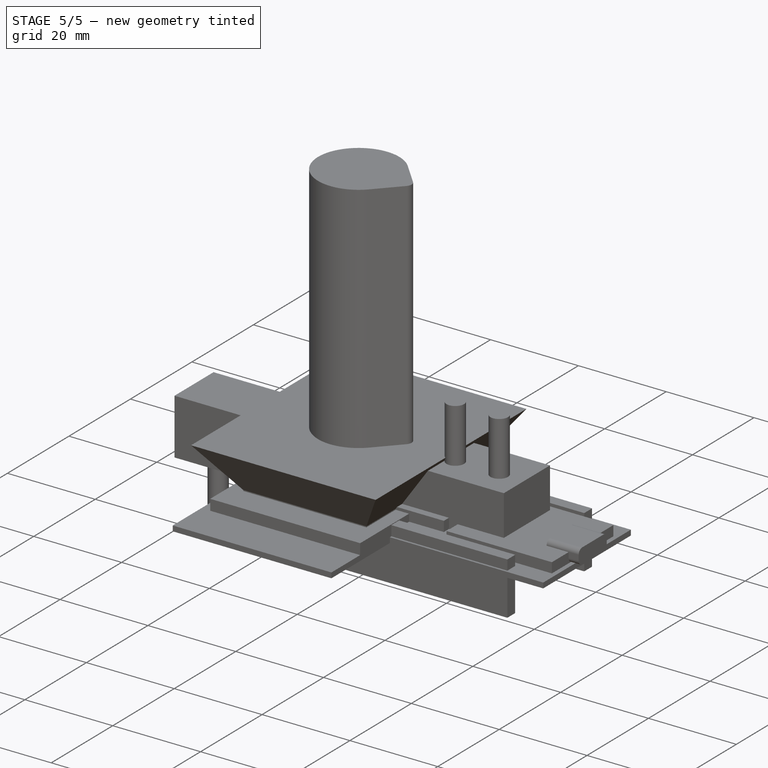
[diagram: stage 5 of 5 — iso view after this stage's code; geometry added in this stage tinted green]
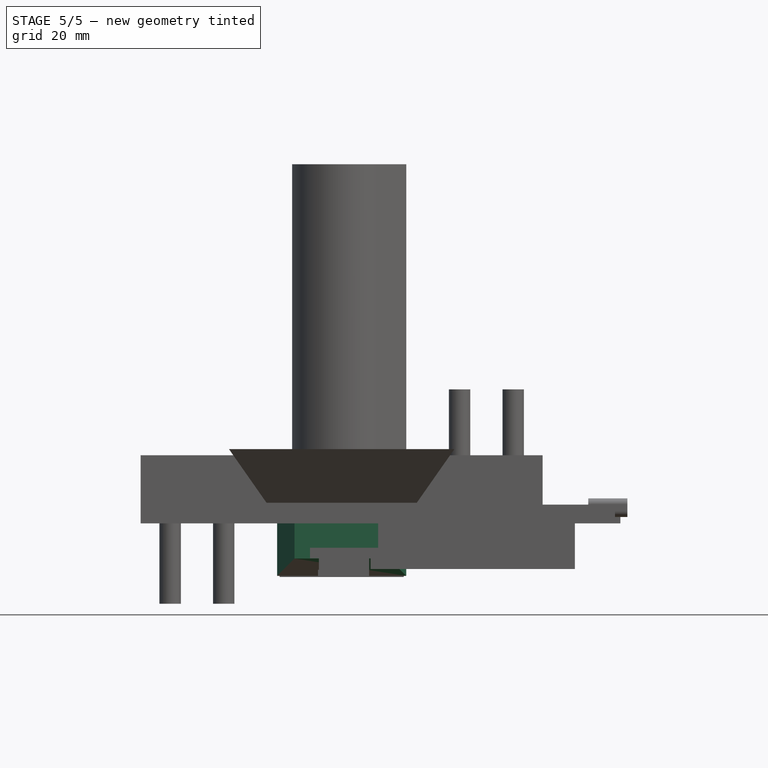
[diagram: stage 5 of 5 — front view after this stage's code; geometry added in this stage tinted green]
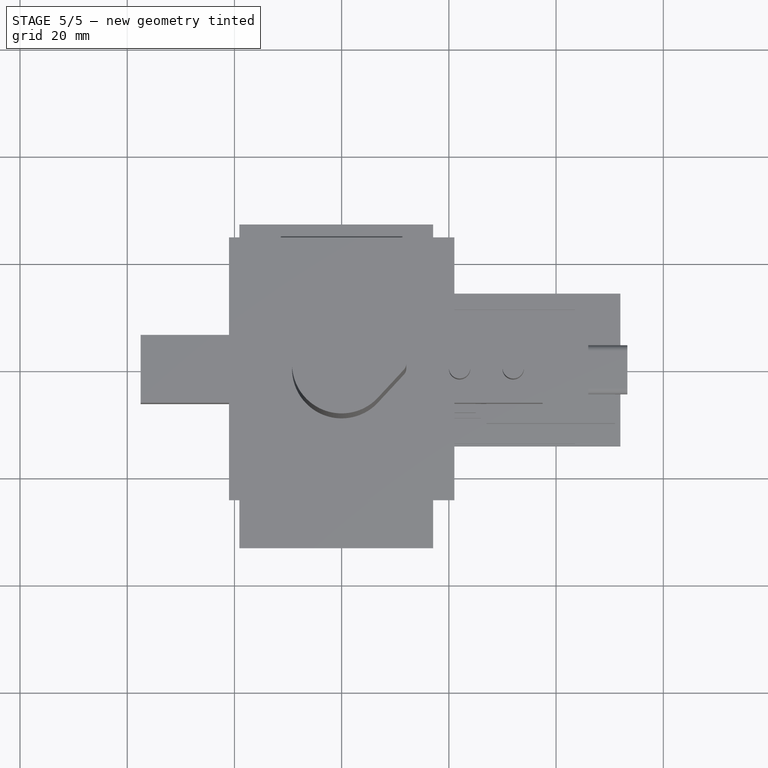
[diagram: stage 5 of 5 — top view after this stage's code; geometry added in this stage tinted green]
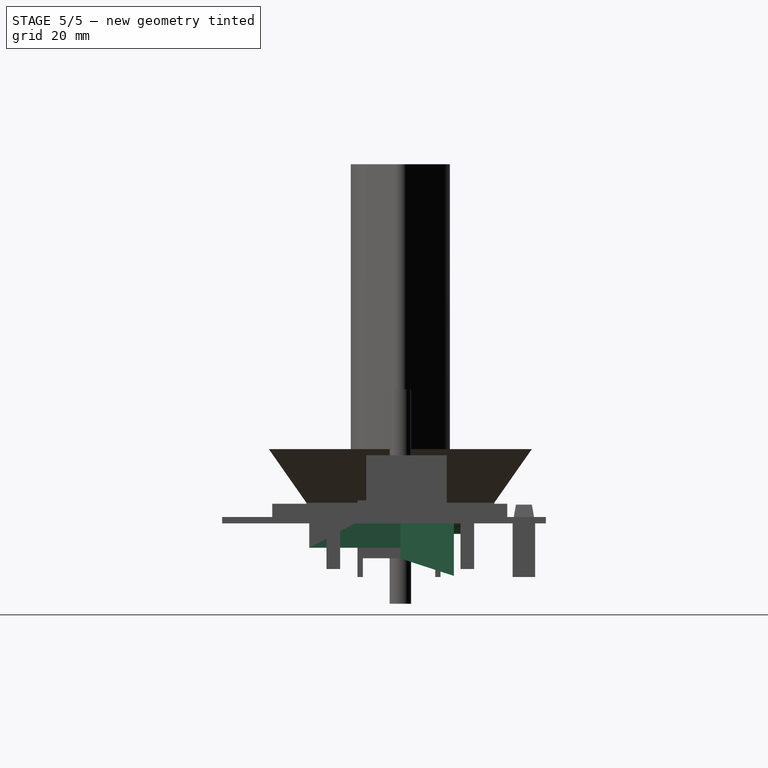
[diagram: stage 5 of 5 — right view after this stage's code; geometry added in this stage tinted green]
FEATURE [PartDesign::SubShapeBinder] Binder001
  BindCopyOnChange = 0
  BindMode = 0
  ClaimChildren = false
  Context = -> Body002 [Binder001.]
  Fuse = false
  MakeFace = true
  Offset = 3
  OffsetFill = false
  OffsetIntersection = false
  OffsetJoinType = 0
  OffsetOpenResult = false
  PartialLoad = false
  Refine = true
  Relative = true
  Support = -> [Sketch003]
  _Version = 2
FEATURE [PartDesign::Pad] Pad008
  BaseFeature = -> Pad007
  Direction = (0,-1,2e-16)
  Length = 10
  Length2 = 10
  Placement = pos=(0,0,0) rot=(1,0,0;1.5708rad)
  Profile = -> Binder001
  Refine = true
  Reversed = true
  Suppressed = false
  Type = 0
FEATURE [Sketcher::SketchObject] Sketch005
  ArcFitTolerance = 1e-06
  AttachmentSupport = -> [XY_Plane004]
  FullyConstrained = false
  MakeInternals = false
  MapMode = 5
  sketch-geometry (5):
    g0: Circle CenterX=0 CenterY=0 CenterZ=0 NormalX=0 NormalY=0 NormalZ=1 AngleXU=0 Radius=9.25
    g1: ArcOfCircle CenterX=0 CenterY=0 CenterZ=0 NormalX=0 NormalY=0 NormalZ=1 AngleXU=0 Radius=9.25 StartAngle=0.74724 EndAngle=5.53526
    g2: LineSegment StartX=6.7855 StartY=6.28645 StartZ=0 EndX=11.637 EndY=1.04978 EndZ=0
    g3: ArcOfCircle CenterX=10.5 CenterY=-0.00362076 CenterZ=0 NormalX=0 NormalY=0 NormalZ=1 AngleXU=0 Radius=1.55 StartAngle=5.53526 EndAngle=7.03042
    g4: LineSegment StartX=11.6363 StartY=-1.05781 StartZ=0 EndX=6.78116 EndY=-6.29114 EndZ=0
  constraints (10):
    c: Diameter(g0) = 18.5
    c: Coincident(g0,g-1)
    c: Coincident(g1,g0)
    c: PointOnObject(g1,g0)
    c: Tangent(g2,g3) = 1.5708
    c: Coincident(g4,g1)
    c: Tangent(g4,g0)
    c: Tangent(g3,g4) = 1.5708
    c: Tangent(g1,g2) = 1.5708
    c: Radius(g3) = 1.55
FEATURE [Sketcher::SketchObject] Sketch006
  ArcFitTolerance = 1e-06
  AttachmentSupport = -> [XY_Plane005]
  FullyConstrained = true
  MakeInternals = false
  MapMode = 5
  sketch-geometry (8):
    g0: LineSegment StartX=-8.8 StartY=0 StartZ=0 EndX=-12.0492 EndY=10 EndZ=0
    g1: LineSegment StartX=-12.0492 StartY=10 StartZ=0 EndX=12.0492 EndY=10 EndZ=0
    g2: LineSegment StartX=12.0492 StartY=10 StartZ=0 EndX=8.8 EndY=0 EndZ=0
    g3: LineSegment StartX=8.8 StartY=0 StartZ=0 EndX=6.8 EndY=0 EndZ=0
    g4: LineSegment StartX=6.8 StartY=0 StartZ=0 EndX=6.8 EndY=-17 EndZ=0
    g5: LineSegment StartX=6.8 StartY=-17 StartZ=0 EndX=-6.8 EndY=-17 EndZ=0
    g6: LineSegment StartX=-6.8 StartY=-17 StartZ=0 EndX=-6.8 EndY=0 EndZ=0
    g7: LineSegment StartX=-6.8 StartY=0 StartZ=0 EndX=-8.8 EndY=0 EndZ=0
  constraints (22):
    c: PointOnObject(g0,g-1)
    c: Coincident(g0,g1)
    c: Coincident(g1,g2)
    c: PointOnObject(g2,g-1)
    c: Coincident(g2,g3)
    c: PointOnObject(g3,g-1)
    c: Coincident(g3,g4)
    c: Vertical(g4)
    c: Horizontal(g5)
    c: Coincident(g6,g7)
    c: Coincident(g7,g0)
    c: Vertical(g6)
    c: Symmetric(g1,g0,g-2)
    c: Symmetric(g6,g3,g-2)
    c: Equal(g3,g7)
    c: DistanceX(g7,g7) = 2
    c: DistanceX(g6,g3) = 13.6
    c: Angle(g2,g3) = 1.88496
    c: DistanceY(g1) = 10
    c: DistanceY(g5) = -17
    c: Coincident(g4,g5)
    c: Coincident(g5,g6)
FEATURE [Image::ImagePlane] switch  label="switch001"
  Placement = pos=(4.15,-14.6,0) rot=(0,0,1;0rad)
  XSize = 46.4854
  YSize = 52.5152
FEATURE [Image::ImagePlane] switch001  label="switch002"
  Placement = pos=(0,-14.7,16.1) rot=(0,1,0;1.5708rad)
  XSize = 46.585
  YSize = 52.6277
FEATURE [Sketcher::SketchObject] Sketch007
  ArcFitTolerance = 1e-06
  AttachmentSupport = -> [YZ_Plane005]
  ExternalGeometry = -> [Sketch006]
  FullyConstrained = false
  MakeInternals = false
  MapMode = 5
  Placement = pos=(0,0,0) rot=(0.57735,0.57735,0.57735;2.0944rad)
  sketch-geometry (12):
    g0: LineSegment StartX=9.98307 StartY=9.79369 StartZ=0 EndX=9.98307 EndY=-9.79369 EndZ=0
    g1: LineSegment StartX=9.98307 StartY=-9.79369 StartZ=0 EndX=0 EndY=-6.55 EndZ=0
    g2: LineSegment StartX=0 StartY=-6.55 StartZ=0 EndX=0 EndY=-4.55 EndZ=0
    g3: LineSegment StartX=0 StartY=-4.55 StartZ=0 EndX=-17 EndY=-4.55 EndZ=0
    g4: LineSegment StartX=-17 StartY=-4.55 StartZ=0 EndX=-17 EndY=4.55 EndZ=0
    g5: LineSegment StartX=-17 StartY=4.55 StartZ=0 EndX=0 EndY=4.55 EndZ=0
    g6: LineSegment StartX=0 StartY=4.55 StartZ=0 EndX=0 EndY=6.55 EndZ=0
    g7: LineSegment StartX=0 StartY=6.55 StartZ=0 EndX=9.98307 EndY=9.79369 EndZ=0
    g8: LineSegment StartX=-35.1614 StartY=30.2524 StartZ=0 EndX=-35.1614 EndY=-33.0132 EndZ=0
    g9: LineSegment StartX=-35.1614 StartY=-33.0132 StartZ=0 EndX=30.785 EndY=-33.0132 EndZ=0
    g10: LineSegment StartX=30.785 StartY=-33.0132 StartZ=0 EndX=30.785 EndY=30.2524 EndZ=0
    g11: LineSegment StartX=30.785 StartY=30.2524 StartZ=0 EndX=-35.1614 EndY=30.2524 EndZ=0
  constraints (29):
    c: Coincident(g0,g1)
    c: PointOnObject(g1,g-2)
    c: Coincident(g1,g2)
    c: PointOnObject(g2,g-2)
    c: Coincident(g2,g3)
    c: Horizontal(g3)
    c: Coincident(g3,g4)
    c: Vertical(g4)
    c: Coincident(g4,g5)
    c: PointOnObject(g5,g-2)
    c: Horizontal(g5)
    c: Coincident(g5,g6)
    c: PointOnObject(g6,g-2)
    c: Coincident(g6,g7)
    c: Coincident(g0,g7)
    c: Equal(g6,g2)
    c: Symmetric(g0,g0,g-1)
    c: Equal(g7,g1)
    c: DistanceY(g2,g5) = 9.1
    c: DistanceY(g2,g2) = 2
    c: Angle(g1,g2) = 1.88496
    c: Coincident(g8,g9)
    c: Coincident(g9,g10)
    c: Coincident(g10,g11)
    c: Coincident(g11,g8)
    c: Vertical(g8)
    c: Vertical(g10)
    c: Horizontal(g9)
    c: Horizontal(g11)
FEATURE [PartDesign::Pad] Pad015
  Direction = (0,0,1)
  Length = 40
  Length2 = 10
  Midplane = true
  Profile = -> Sketch006
  ReferenceAxis = -> Sketch006 [N_Axis]
  Refine = true
  Suppressed = false
  Type = 0
FEATURE [PartDesign::Pocket] Pocket
  BaseFeature = -> Pad015
  Direction = (-1,0,0)
  Length = 5
  Length2 = 5
  Midplane = true
  Profile = -> Sketch007
  ReferenceAxis = -> Sketch007 [N_Axis]
  Refine = true
  Suppressed = false
  Type = 1
FEATURE [PartDesign::Body] Body005  label="switch"
  AllowCompound = false
  Group = -> [Sketch006,Sketch007,Pad015,Pocket]
  Origin = -> Origin005
  Tip = -> Pocket
FEATURE [PartDesign::Pad] Pad021
  BaseFeature = -> Pad008
  Direction = (0,0,1)
  Length = 4.5
  Length2 = 10
  Placement = pos=(0,0,0) rot=(1,0,0;1.5708rad)
  Profile = -> Sketch002
  ReferenceAxis = -> Sketch002 [N_Axis]
  Refine = true
  Suppressed = false
  Type = 0
FEATURE [Sketcher::SketchObject] Sketch008
  ArcFitTolerance = 1e-06
  AttachmentOffset = pos=(0,0,2) rot=(0,0,1;0rad)
  AttachmentSupport = -> [XY_Plane002]
  FullyConstrained = true
  MakeInternals = false
  MapMode = 5
  Placement = pos=(0,0,2) rot=(0,0,1;0rad)
  sketch-geometry (4):
    g0: LineSegment StartX=-7 StartY=0 StartZ=0 EndX=-7 EndY=-16 EndZ=0
    g1: LineSegment StartX=-7 StartY=-16 StartZ=0 EndX=7 EndY=-16 EndZ=0
    g2: LineSegment StartX=7 StartY=-16 StartZ=0 EndX=7 EndY=0 EndZ=0
    g3: LineSegment StartX=7 StartY=0 StartZ=0 EndX=-7 EndY=0 EndZ=0
  constraints (11):
    c: Coincident(g0,g1)
    c: Coincident(g1,g2)
    c: Coincident(g2,g3)
    c: Coincident(g3,g0)
    c: Vertical(g0)
    c: Vertical(g2)
    c: Horizontal(g3)
    c: PointOnObject(g0,g-1)
    c: Symmetric(g1,g0,g-2)
    c: DistanceY(g1) = -16
    c: DistanceX(g1,g1) = 14
FEATURE [PartDesign::Pad] Pad022
  BaseFeature = -> Pad021
  Direction = (0,0,1)
  Length = 3
  Length2 = 10
  Placement = pos=(0,0,0) rot=(1,0,0;1.5708rad)
  Profile = -> Sketch008
  ReferenceAxis = -> Sketch008 [N_Axis]
  Refine = true
  Suppressed = false
  Type = 0
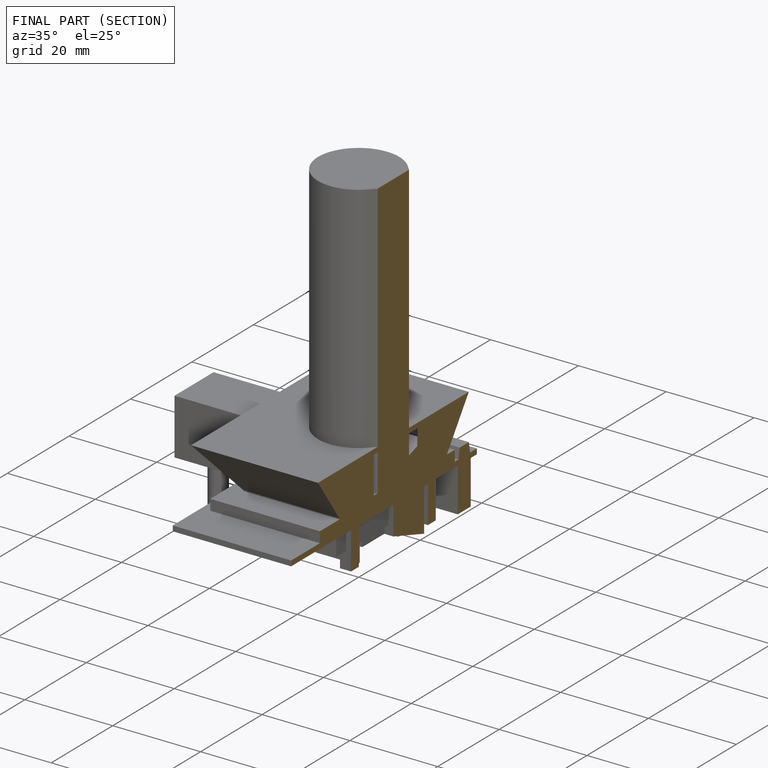
[diagram: finished part — half-section view (interior)]
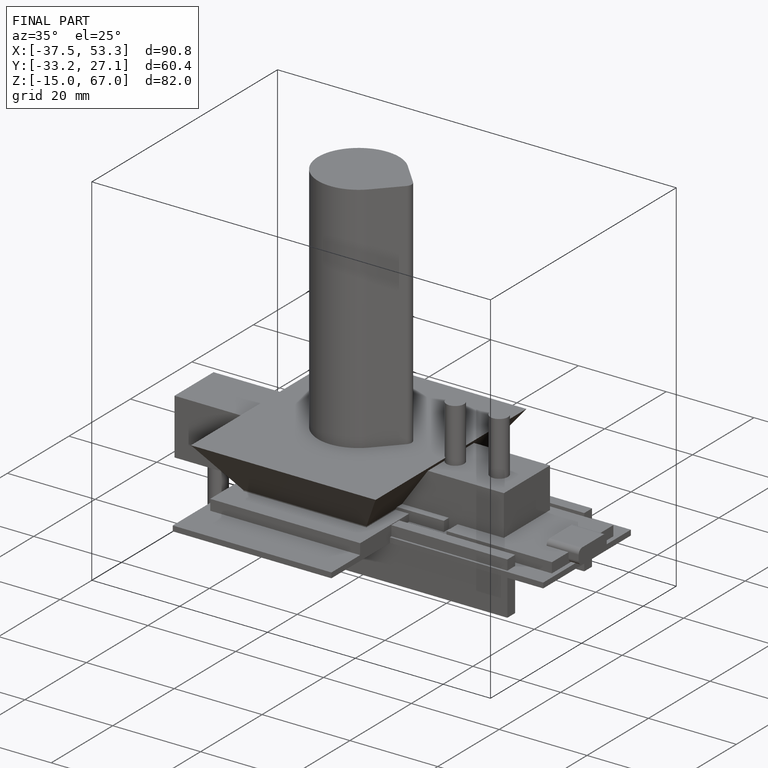
[diagram: finished part — iso view with bounding-box wireframe]
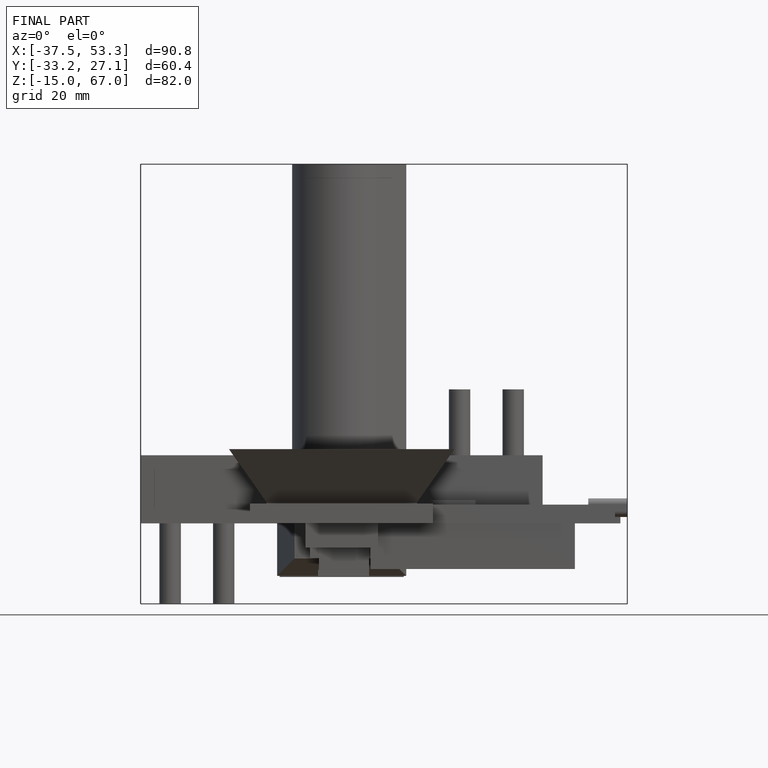
[diagram: finished part — front view with bounding-box wireframe]
